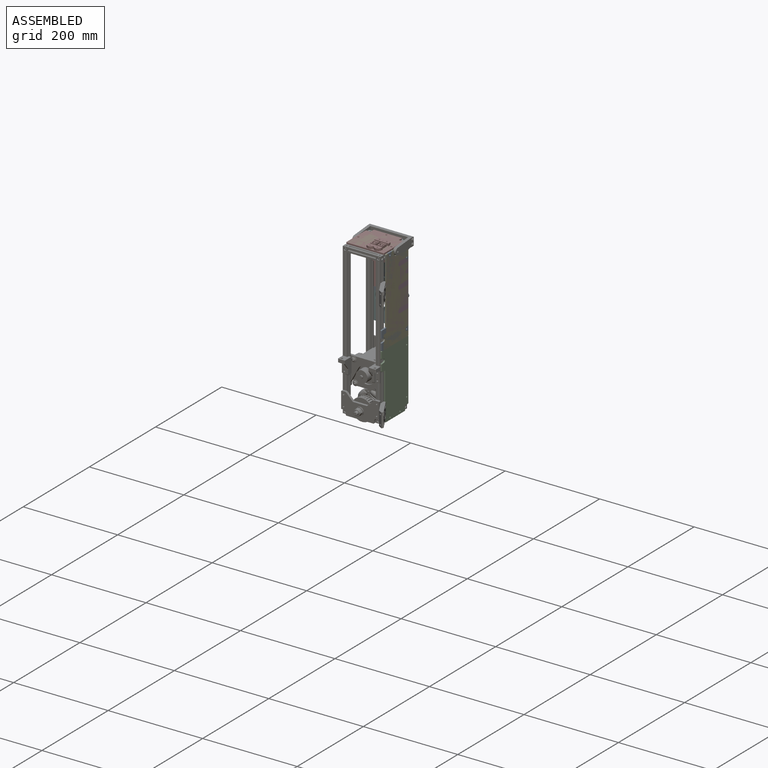
[diagram: assembled view]
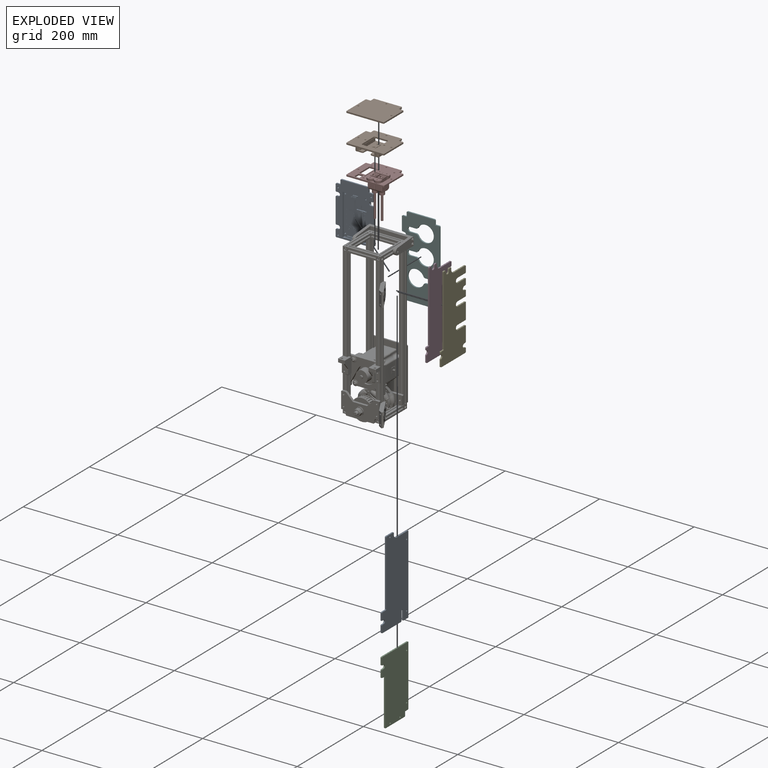
[diagram: exploded view]
GUIDED TOUR — FREECAD ASSEMBLY "colonne-moteur"

This assembly has 10 components, labeled P0..P9 below (a component is one placed body or linked part; the same part can appear more than once), held together by 0 modeled joints plus 39 derived contact edges. A joint is a constraint between two components; its type names the relative motion it leaves free:
  CONTACT — a derived adjacency edge — the two components touch in the source model (clearance under 2% of the assembly's diagonal); it is measured from the geometry, not a modeled constraint.
Axis/direction vectors are unit vectors and 'through' points are millimeter coordinates, both in the assembly's world frame.

MATES
  1. CONTACT "contact_0_1": P0 <-> P1, contact direction (0.000, 0.000, 1.000) through (40.00, 7.00, 319.50) mm (derived from contact, not a modeled constraint)
  2. CONTACT "contact_0_2": P0 <-> P2, contact direction (0.000, 0.000, -1.000) through (40.00, -4.00, 140.00) mm (derived from contact, not a modeled constraint)
  3. CONTACT "contact_0_3": P0 <-> P3, contact direction (1.000, 0.000, 0.000) through (40.00, 74.00, 140.00) mm (derived from contact, not a modeled constraint)
  4. CONTACT "contact_0_4": P0 <-> P4, contact direction (1.000, 0.000, 0.000) through (40.00, 74.00, 140.00) mm (derived from contact, not a modeled constraint)
  5. CONTACT "contact_0_5": P0 <-> P5, contact direction (0.000, 1.000, 0.000) through (40.00, 74.50, 308.00) mm (derived from contact, not a modeled constraint)
  6. CONTACT "contact_0_6": P0 <-> P6, contact direction (0.000, 0.000, -1.000) through (43.00, 37.22, 307.73) mm (derived from contact, not a modeled constraint)
  7. CONTACT "contact_0_7": P0 <-> P7, contact direction (0.000, 0.000, 1.000) through (38.08, 32.38, 319.50) mm (derived from contact, not a modeled constraint)
  8. CONTACT "contact_0_8": P0 <-> P8, contact direction (-0.697, 0.699, -0.163) through (39.14, 76.50, 305.24) mm (derived from contact, not a modeled constraint)
  9. CONTACT "contact_0_9": P0 <-> P9, contact direction (0.000, 0.000, 1.000) through (40.00, 7.00, 319.50) mm (derived from contact, not a modeled constraint)
  10. CONTACT "contact_1_3": P1 <-> P3, contact direction (0.000, 0.000, -1.000) through (40.00, 7.00, 319.50) mm (derived from contact, not a modeled constraint)
  11. CONTACT "contact_1_4": P1 <-> P4, contact direction (0.000, 0.000, -1.000) through (40.00, 7.00, 319.50) mm (derived from contact, not a modeled constraint)
  12. CONTACT "contact_1_5": P1 <-> P5, contact direction (0.000, 1.000, 0.000) through (-29.00, 75.00, 320.00) mm (derived from contact, not a modeled constraint)
  13. CONTACT "contact_1_6": P1 <-> P6, contact direction (0.000, 0.000, -1.000) through (39.50, 5.00, 320.00) mm (derived from contact, not a modeled constraint)
  14. CONTACT "contact_1_7": P1 <-> P7, contact direction (0.000, 0.000, -1.000) through (-39.00, 5.00, 320.00) mm (derived from contact, not a modeled constraint)
  15. CONTACT "contact_1_8": P1 <-> P8, contact direction (-1.000, 0.000, 0.000) through (29.00, 75.00, 320.00) mm (derived from contact, not a modeled constraint)
  16. CONTACT "contact_1_9": P1 <-> P9, contact direction (0.000, 0.000, -1.000) through (-39.00, 5.00, 320.00) mm (derived from contact, not a modeled constraint)
  17. CONTACT "contact_2_3": P2 <-> P3, contact direction (-1.000, 0.000, 0.000) through (43.00, 74.00, 140.00) mm (derived from contact, not a modeled constraint)
  18. CONTACT "contact_2_4": P2 <-> P4, contact direction (-1.000, 0.000, 0.000) through (43.00, 74.00, 140.00) mm (derived from contact, not a modeled constraint)
  19. CONTACT "contact_2_6": P2 <-> P6, contact direction (-1.000, 0.000, 0.000) through (38.25, 65.00, 10.00) mm (derived from contact, not a modeled constraint)
  20. CONTACT "contact_3_4": P3 <-> P4, contact direction (1.000, 0.000, 0.000) through (40.00, 0.00, 141.00) mm (derived from contact, not a modeled constraint)
  21. CONTACT "contact_3_5": P3 <-> P5, contact direction (-0.697, 0.699, -0.163) through (39.50, 74.78, 149.81) mm (derived from contact, not a modeled constraint)
  22. CONTACT "contact_3_6": P3 <-> P6, contact direction (0.000, 0.000, -1.000) through (43.00, 37.22, 307.73) mm (derived from contact, not a modeled constraint)
  23. CONTACT "contact_3_7": P3 <-> P7, contact direction (0.000, 0.000, 1.000) through (38.08, 32.38, 319.50) mm (derived from contact, not a modeled constraint)
  24. CONTACT "contact_3_8": P3 <-> P8, contact direction (-0.697, 0.699, -0.163) through (40.00, 75.00, 285.18) mm (derived from contact, not a modeled constraint)
  25. CONTACT "contact_3_9": P3 <-> P9, contact direction (0.000, 0.000, 1.000) through (40.00, 7.00, 319.50) mm (derived from contact, not a modeled constraint)
  26. CONTACT "contact_4_5": P4 <-> P5, contact direction (0.000, 1.000, 0.000) through (39.99, 75.00, 191.51) mm (derived from contact, not a modeled constraint)
  27. CONTACT "contact_4_6": P4 <-> P6, contact direction (0.000, 0.000, -1.000) through (43.00, 37.22, 307.73) mm (derived from contact, not a modeled constraint)
  28. CONTACT "contact_4_7": P4 <-> P7, contact direction (0.000, 0.000, 1.000) through (38.08, 32.38, 319.50) mm (derived from contact, not a modeled constraint)
  29. CONTACT "contact_4_8": P4 <-> P8, contact direction (0.000, 1.000, 0.000) through (39.50, 75.00, 293.75) mm (derived from contact, not a modeled constraint)
  30. CONTACT "contact_4_9": P4 <-> P9, contact direction (0.000, 0.000, 1.000) through (40.00, 7.00, 319.50) mm (derived from contact, not a modeled constraint)
  31. CONTACT "contact_5_6": P5 <-> P6, contact direction (0.163, -0.066, -0.984) through (40.00, 78.70, 308.50) mm (derived from contact, not a modeled constraint)
  32. CONTACT "contact_5_7": P5 <-> P7, contact direction (0.000, -1.000, 0.000) through (29.00, 75.00, 320.00) mm (derived from contact, not a modeled constraint)
  33. CONTACT "contact_5_8": P5 <-> P8, contact direction (0.000, 1.000, 0.000) through (29.00, 75.00, 320.00) mm (derived from contact, not a modeled constraint)
  34. CONTACT "contact_5_9": P5 <-> P9, contact direction (0.000, -1.000, 0.000) through (-29.00, 75.00, 321.50) mm (derived from contact, not a modeled constraint)
  35. CONTACT "contact_6_7": P6 <-> P7, contact direction (0.000, 0.000, 1.000) through (-37.38, 3.95, 318.95) mm (derived from contact, not a modeled constraint)
  36. CONTACT "contact_6_8": P6 <-> P8, contact direction (-0.163, 0.066, 0.984) through (38.93, 78.90, 306.90) mm (derived from contact, not a modeled constraint)
  37. CONTACT "contact_6_9": P6 <-> P9, contact direction (0.000, 0.000, 1.000) through (40.00, 5.50, 320.00) mm (derived from contact, not a modeled constraint)
  38. CONTACT "contact_7_8": P7 <-> P8, contact direction (-1.000, 0.000, 0.000) through (29.00, 75.00, 320.00) mm (derived from contact, not a modeled constraint)
  39. CONTACT "contact_7_9": P7 <-> P9, contact direction (-0.697, 0.699, -0.163) through (-39.00, 5.00, 320.00) mm (derived from contact, not a modeled constraint)

ASSEMBLY ORDER
  1. P6 — the base component [order heuristic]
  2. P5 — core [order heuristic]
  3. P2 [order verified]
  4. P8 — core [order heuristic]
  5. P0 [order verified]
  6. P4 [order verified]
  7. P3 [order verified]
  8. P7 — core [order heuristic]
  9. P9 — core [order heuristic]
  10. P1 [order verified]
(P3 verified with a relaxed clearance tolerance: the source model stores slight part interference there.)
Order-tag legend:
  [order verified] — this step's position reverses a verified removal order: the component was checked to insert without passing through the ones already placed.
  [order heuristic] — the first 5 components form the assembly's core: parts whose collision-free extraction could not be verified, listed in mate-graph order.

Of the 10 components, 10 carry a construction recipe — the FreeCAD feature program (sketches with constraints, then the solid features that consume them) that regenerates the part from scratch, quoted from this document or from the linked companion document it references; the rest are supplied as boundary geometry only. The tour below walks the components in assembly order: each is shown spotlighted twice — in the assembled view, then in the exploded view, where a leader line traces a displaced component back to its assembled socket (components that stay in place when exploded have no leader line; saturated green if recipe-attached, orange if geometry-only; every other component desaturated gray) — followed by its recipe or geometry summary and the mates that hold it.
NOTE — this tour is split across 2 documents so each fits a 32k-token context. This is document 1: the component sections continue in the remaining 1 document, each repeating the header above.
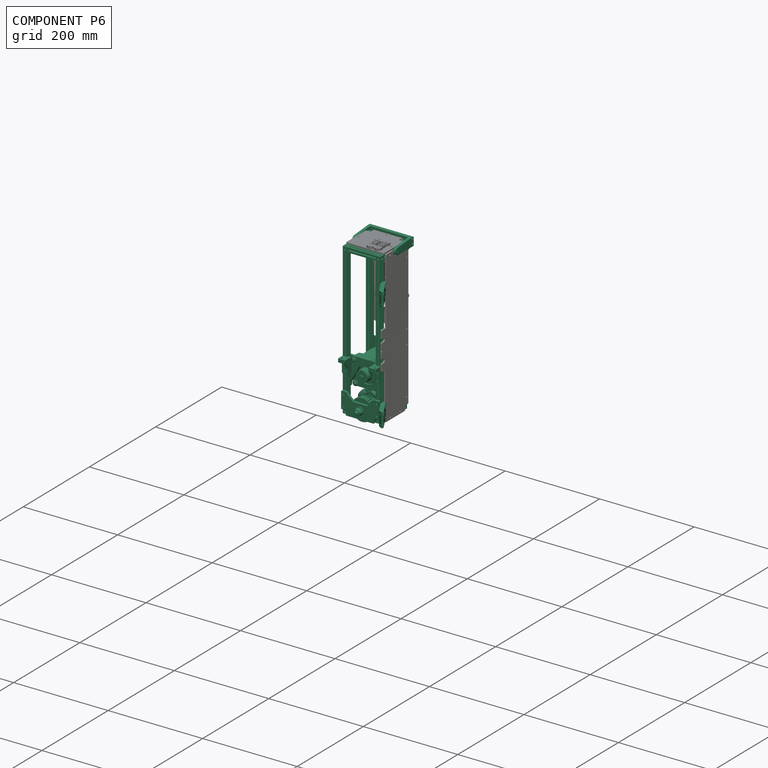
[diagram: component P6 — assembled]
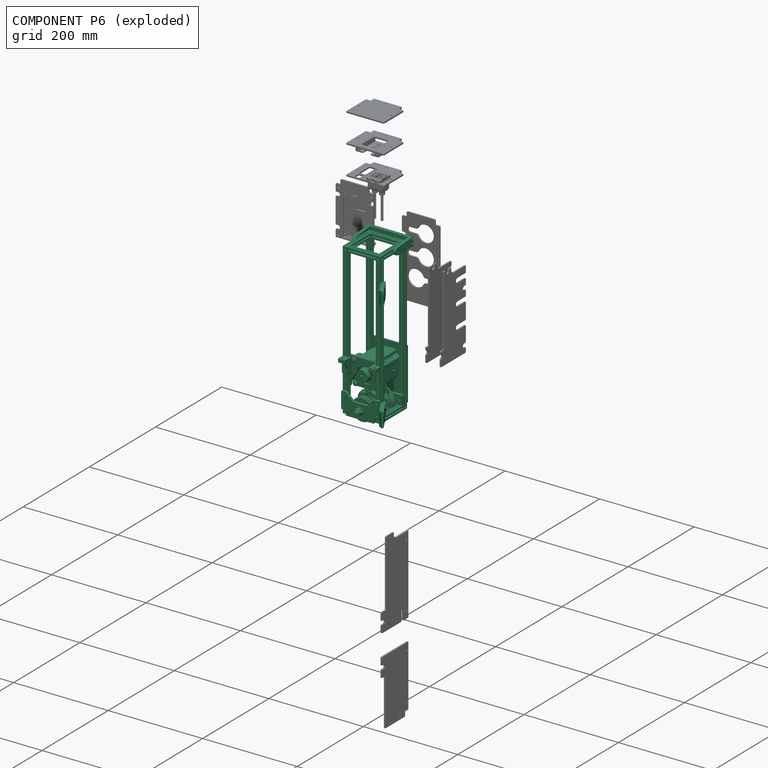
[diagram: component P6 — exploded]
COMPONENT P6 — recipe-attached ("ColonneMoteur", modeled in this document).
Held by: resting contact with P0 (derived edge); resting contact with P1 (derived edge); resting contact with P2 (derived edge); resting contact with P3 (derived edge); resting contact with P4 (derived edge); resting contact with P5 (derived edge); resting contact with P7 (derived edge); resting contact with P8 (derived edge); resting contact with P9 (derived edge).
Construction recipe (the document's own serialized feature program — sketch geometry with constraints, then the solid features built on it; lengths are millimeters unless a unit is written):

FEATURE [Part::SubShapeBinder] Import  label="Import(Chamfer001)"
  BindCopyOnChange = 0
  BindMode = 0
  ClaimChildren = false
  Context = -> <external ../robots_2023.FCStd>#Part001 [Link001.Group001.Link003.Body088.Import.]
  EdgeTolerance = 1e-06
  FillStyle = 0
  Fuse = false
  InvalidShape = false
  MakeFace = false
  MergeEdges = true
  OffsetFill = false
  OffsetIntersection = false
  OffsetJoinType = 0
  OffsetOpenResult = false
  Outline = false
  PartialLoad = false
  Relative = true
  SplitEdges = false
  Support = -> [Part[Body014.Chamfer001.]]
  TightBound = false
  TreeRank = 430
  ValidateShape = true
  _Version = 8
FEATURE [Sketcher::SketchObject] Sketch191
  ArcFitTolerance = 1e-06
  AttachmentSupport = -> [Import]
  ExternalBSplineMaxDegree = 5
  ExternalBSplineTolerance = 0.0001
  FullyConstrained = true
  InternalTolerance = 1e-06
  InvalidShape = false
  MakeInternals = true
  MapMode = 5
  Placement = pos=(0,65,1.44e-14) rot=(0,0.707107,0.707107;3.14159rad)
  Support = -> [Import]
  TreeRank = 431
  ValidateShape = true
  sketch-geometry (6):
    g0: LineSegment StartX=30 StartY=10 StartZ=0 EndX=15 EndY=10 EndZ=0
    g1: LineSegment StartX=15 StartY=10 StartZ=0 EndX=15 EndY=40 EndZ=0
    g2: LineSegment StartX=15 StartY=40 StartZ=0 EndX=30 EndY=40 EndZ=0
    g3: LineSegment StartX=30 StartY=40 StartZ=0 EndX=30 EndY=10 EndZ=0
    g4: Circle CenterX=22.5 CenterY=14 CenterZ=0 NormalX=0 NormalY=0 NormalZ=1 AngleXU=0 Radius=2.1
    g5: LineSegment [constr] StartX=22.5 StartY=10 StartZ=0 EndX=22.5 EndY=40 EndZ=0
  constraints (18):
    c: Coincident(g0,g1)
    c: Coincident(g1,g2)
    c: Coincident(g2,g3)
    c: Coincident(g3,g0)
    c: Horizontal(g0)
    c: Horizontal(g2)
    c: Vertical(g1)
    c: Vertical(g3)
    c: DistanceX(g2,g2) = 15
    c: DistanceY(g1,g1) = 30
    c: DistanceX(g-1,g0) = 30
    c: DistanceY(g-1,g0) = 10
    c: PointOnObject(g5,g0)
    c: Vertical(g5)
    c: Symmetric(g1,g2,g5)
    c: PointOnObject(g4,g5)
    c: Diameter(g4) = 4.2
    c: DistanceY(g5,g4) = 4
FEATURE [PartDesign::Pad] Pad101
  AddSubType = 0
  AlongSketchNormal = false
  AutoTaperInnerAngle = true
  CheckUpToFaceLimits = true
  ClaimChildren = false
  Direction = (0,1,2e-16)
  Fit = 0
  FitJoin = 0
  InnerFit = 0
  InnerFitJoin = 0
  InvalidShape = false
  Length = 10
  Length2 = 100
  Linearize = true
  NewSolid = false
  Profile = -> Sketch191
  Refine = true
  Suppress = false
  TaperInnerAngle = 0
  TaperInnerAngleRev = 0
  TreeRank = 432
  Type = 0
  ValidateShape = true
  _ProfileBasedVersion = 1
FEATURE [Sketcher::SketchObject] Sketch192
  ArcFitTolerance = 1e-06
  AttachmentSupport = -> [Pad101]
  ExternalBSplineMaxDegree = 5
  ExternalBSplineTolerance = 0.0001
  ExternalGeometry = -> [Pad101]
  FullyConstrained = true
  InternalTolerance = 1e-06
  InvalidShape = false
  MakeInternals = true
  MapMode = 5
  Placement = pos=(0,75,3.62e-14) rot=(0,0.707107,0.707107;3.14159rad)
  Support = -> [Pad101]
  TreeRank = 433
  ValidateShape = true
  sketch-geometry (4):
    g0: LineSegment StartX=15 StartY=40 StartZ=0 EndX=30 EndY=40 EndZ=0
    g1: LineSegment StartX=30 StartY=40 StartZ=0 EndX=30 EndY=18 EndZ=0
    g2: LineSegment StartX=30 StartY=18 StartZ=0 EndX=15 EndY=18 EndZ=0
    g3: LineSegment StartX=15 StartY=18 StartZ=0 EndX=15 EndY=40 EndZ=0
  constraints (10):
    c: Coincident(g0,g1)
    c: Coincident(g1,g2)
    c: Coincident(g2,g3)
    c: Coincident(g3,g0)
    c: Horizontal(g2)
    c: Vertical(g1)
    c: Vertical(g3)
    c: Coincident(g0,g-3)
    c: Coincident(g0,g-3)
    c: DistanceY(g-4,g2) = 8
FEATURE [PartDesign::Pocket] Pocket033
  AddSubType = 1
  AutoTaperInnerAngle = true
  BaseFeature = -> Pad101
  CheckUpToFaceLimits = true
  ClaimChildren = false
  Direction = (1,1,1)
  Fit = 0
  FitJoin = 0
  InnerFit = 0
  InnerFitJoin = 0
  InvalidShape = false
  Length = 8
  Length2 = 100
  Linearize = true
  NewSolid = false
  Profile = -> Sketch192
  Refine = true
  Suppress = false
  TaperInnerAngle = 0
  TaperInnerAngleRev = 0
  TreeRank = 434
  Type = 0
  ValidateShape = true
  _ProfileBasedVersion = 1
  _Version = 1
FEATURE [Sketcher::SketchObject] Sketch193
  ArcFitTolerance = 1e-06
  AttachmentSupport = -> [Pocket033]
  ExternalBSplineMaxDegree = 5
  ExternalBSplineTolerance = 0.0001
  ExternalGeometry = -> [Pocket033]
  FullyConstrained = true
  InternalTolerance = 1e-06
  InvalidShape = false
  MakeInternals = true
  MapMode = 5
  Placement = pos=(0,67,0) rot=(0,0.707107,0.707107;3.14159rad)
  Support = -> [Pocket033]
  TreeRank = 435
  ValidateShape = true
  sketch-geometry (4):
    g0: LineSegment StartX=15 StartY=18 StartZ=0 EndX=30 EndY=18 EndZ=0
    g1: LineSegment StartX=30 StartY=18 StartZ=0 EndX=30 EndY=26 EndZ=0
    g2: LineSegment StartX=30 StartY=26 StartZ=0 EndX=15 EndY=26 EndZ=0
    g3: LineSegment StartX=15 StartY=26 StartZ=0 EndX=15 EndY=18 EndZ=0
  constraints (10):
    c: Coincident(g0,g1)
    c: Coincident(g1,g2)
    c: Coincident(g2,g3)
    c: Coincident(g3,g0)
    c: Horizontal(g2)
    c: Vertical(g1)
    c: Vertical(g3)
    c: Coincident(g0,g-3)
    c: Coincident(g0,g-3)
    c: DistanceY(g3,g3) = 8
FEATURE [PartDesign::Pad] Pad102
  AddSubType = 0
  AlongSketchNormal = false
  AutoTaperInnerAngle = true
  BaseFeature = -> Pocket033
  CheckUpToFaceLimits = true
  ClaimChildren = false
  Direction = (0,1,-2e-16)
  Fit = 0
  FitJoin = 0
  InnerFit = 0
  InnerFitJoin = 0
  InvalidShape = false
  Length = 1.5
  Length2 = 100
  Linearize = true
  NewSolid = false
  Profile = -> Sketch193
  Refine = true
  Suppress = false
  TaperInnerAngle = 0
  TaperInnerAngleRev = 0
  TreeRank = 436
  Type = 0
  ValidateShape = true
  _ProfileBasedVersion = 1
FEATURE [Sketcher::SketchObject] Sketch194
  ArcFitTolerance = 1e-06
  AttachmentSupport = -> [Pad102]
  ExternalBSplineMaxDegree = 5
  ExternalBSplineTolerance = 0.0001
  ExternalGeometry = -> [Pad102]
  FullyConstrained = true
  InternalTolerance = 1e-06
  InvalidShape = false
  MakeInternals = true
  MapMode = 5
  Placement = pos=(0,-8e-15,18) rot=(0,0,1;0rad)
  Support = -> [Pad102]
  TreeRank = 437
  ValidateShape = true
  sketch-geometry (4):
    g0: LineSegment [constr] StartX=0 StartY=75 StartZ=0 EndX=-22.5 EndY=75 EndZ=0
    g1: LineSegment [constr] StartX=-22.5 StartY=75 StartZ=0 EndX=-1.1511e-12 EndY=-45 EndZ=0
    g2: LineSegment StartX=-30 StartY=68.5 StartZ=0 EndX=-15 EndY=71.3125 EndZ=0
    g3: LineSegment StartX=-15 StartY=71.3125 StartZ=0 EndX=-15 EndY=68.5 EndZ=0
  constraints (11):
    c: PointOnObject(g0,g-2)
    c: Horizontal(g0)
    c: Coincident(g1,g0)
    c: PointOnObject(g1,g-2)
    c: DistanceY(g1,g0) = 120
    c: Symmetric(g-3,g-3,g0)
    c: Coincident(g2,g-4)
    c: Coincident(g3,g2)
    c: Coincident(g3,g-4)
    c: Vertical(g3)
    c: Perpendicular(g1,g2)
FEATURE [PartDesign::Pad] Pad103
  AddSubType = 0
  AlongSketchNormal = false
  AutoTaperInnerAngle = true
  BaseFeature = -> Pad102
  CheckUpToFaceLimits = true
  ClaimChildren = false
  Direction = (0,-4e-16,1)
  Fit = 0
  FitJoin = 0
  InnerFit = 0
  InnerFitJoin = 0
  InvalidShape = false
  Length = 10
  Length2 = 100
  Linearize = true
  NewSolid = false
  Profile = -> Sketch194
  Refine = true
  Suppress = false
  TaperInnerAngle = 0
  TaperInnerAngleRev = 0
  TreeRank = 438
  Type = 3
  UpToFace = -> Pad102 [Face9]
  ValidateShape = true
  _ProfileBasedVersion = 1
FEATURE [Sketcher::SketchObject] Sketch195
  ArcFitTolerance = 1e-06
  AttachmentSupport = -> [Pad103]
  ExternalBSplineMaxDegree = 5
  ExternalBSplineTolerance = 0.0001
  ExternalGeometry = -> [Pad103]
  FullyConstrained = true
  InternalTolerance = 1e-06
  InvalidShape = false
  MakeInternals = true
  MapMode = 5
  Placement = pos=(-13.4264,71.6075,3.18e-14) rot=(-0.065577,0.705585,0.705585;3.27256rad)
  Support = -> [Pad103]
  TreeRank = 439
  ValidateShape = true
  sketch-geometry (2):
    g0: LineSegment [constr] StartX=1.60101 StartY=26 StartZ=0 EndX=16.8624 EndY=18 EndZ=0
    g1: Circle CenterX=9.2317 CenterY=22 CenterZ=0 NormalX=0 NormalY=0 NormalZ=1 AngleXU=0 Radius=1.2
  constraints (4):
    c: Coincident(g0,g-3)
    c: Coincident(g0,g-4)
    c: Diameter(g1) = 2.4
    c: Symmetric(g-3,g-4,g1)
FEATURE [PartDesign::Pocket] Pocket034
  AddSubType = 1
  AutoTaperInnerAngle = true
  BaseFeature = -> Pad103
  CheckUpToFaceLimits = true
  ClaimChildren = false
  Direction = (1,1,1)
  Fit = 0
  FitJoin = 0
  InnerFit = 0
  InnerFitJoin = 0
  InvalidShape = false
  Length = 5
  Length2 = 100
  Linearize = true
  NewSolid = false
  Profile = -> Sketch195
  Refine = true
  Suppress = false
  TaperInnerAngle = 0
  TaperInnerAngleRev = 0
  TreeRank = 440
  Type = 1
  ValidateShape = true
  _ProfileBasedVersion = 1
  _Version = 1
FEATURE [Sketcher::SketchObject] Sketch196
  ArcFitTolerance = 1e-06
  AttachmentOffset = pos=(0,0,-3) rot=(0,0,1;0rad)
  AttachmentSupport = -> [Pocket034]
  ExternalBSplineMaxDegree = 5
  ExternalBSplineTolerance = 0.0001
  ExternalGeometry = -> [Pocket034]
  FullyConstrained = true
  InternalTolerance = 1e-06
  InvalidShape = false
  MakeInternals = true
  MapMode = 5
  Placement = pos=(-12.8735,68.6589,3e-14) rot=(-0.065577,0.705585,0.705585;3.27256rad)
  Support = -> [Pocket034]
  TreeRank = 441
  ValidateShape = true
  sketch-geometry (7):
    g0: LineSegment StartX=6.63363 StartY=22 StartZ=0 EndX=7.93267 EndY=19.75 EndZ=0
    g1: LineSegment StartX=7.93267 StartY=19.75 StartZ=0 EndX=10.5307 EndY=19.75 EndZ=0
    g2: LineSegment StartX=10.5307 StartY=19.75 StartZ=0 EndX=11.8298 EndY=22 EndZ=0
    g3: LineSegment StartX=11.8298 StartY=22 StartZ=0 EndX=10.5307 EndY=24.25 EndZ=0
    g4: LineSegment StartX=10.5307 StartY=24.25 StartZ=0 EndX=7.93267 EndY=24.25 EndZ=0
    g5: LineSegment StartX=7.93267 StartY=24.25 StartZ=0 EndX=6.63363 EndY=22 EndZ=0
    g6: Circle [constr] CenterX=9.2317 CenterY=22 CenterZ=0 NormalX=0 NormalY=0 NormalZ=1 AngleXU=0 Radius=2.59808
  constraints (16):
    c: Coincident(g0,g1)
    c: Coincident(g1,g2)
    c: Coincident(g2,g3)
    c: Coincident(g3,g4)
    c: Coincident(g4,g5)
    c: Coincident(g5,g0)
    c: Equal(g0, g1-g5) x5
    c: PointOnObject(g0,g6)
    c: PointOnObject(g1,g6)
    c: PointOnObject(g2,g6)
    c: PointOnObject(g3,g6)
    c: PointOnObject(g4,g6)
    c: PointOnObject(g5,g6)
    c: Coincident(g6,g-3)
    c: Horizontal(g4)
    c: DistanceY(g1,g3) = 4.5
FEATURE [PartDesign::Pocket] Pocket035
  AddSubType = 1
  AutoTaperInnerAngle = true
  BaseFeature = -> Pocket034
  CheckUpToFaceLimits = true
  ClaimChildren = false
  Direction = (1,1,1)
  Fit = 0
  FitJoin = 0
  InnerFit = 0
  InnerFitJoin = 0
  InvalidShape = false
  Length = 5
  Length2 = 100
  Linearize = true
  NewSolid = false
  Profile = -> Sketch196
  Refine = true
  Suppress = false
  TaperInnerAngle = 0
  TaperInnerAngleRev = 0
  TreeRank = 442
  Type = 0
  ValidateShape = true
  _ProfileBasedVersion = 1
  _Version = 1
FEATURE [PartDesign::Chamfer] Chamfer066
  AddSubType = 0
  Angle = 45
  Base = -> Pocket035 [Edge2,Edge1,Edge18,Edge6]
  BaseFeature = -> Pocket035
  ChamferType = 0
  FlipDirection = false
  InvalidShape = false
  NewSolid = false
  Refine = true
  Size = 2
  Size2 = 1
  SupportTransform = false
  Suppress = false
  TreeRank = 443
  UseAllEdges = false
  ValidateShape = true
FEATURE [PartDesign::Chamfer] Chamfer067
  AddSubType = 0
  Angle = 45
  Base = -> Chamfer066 [Edge26,Edge58]
  BaseFeature = -> Chamfer066
  ChamferType = 0
  FlipDirection = false
  InvalidShape = false
  NewSolid = false
  Refine = true
  Size = 0.5
  Size2 = 1
  SupportTransform = false
  Suppress = false
  TreeRank = 444
  UseAllEdges = false
  ValidateShape = true
FEATURE [PartDesign::Chamfer] Chamfer068
  AddSubType = 0
  Angle = 45
  Base = -> Chamfer067 [Edge27,Edge20,Edge26,Edge21]
  BaseFeature = -> Chamfer067
  ChamferType = 0
  FlipDirection = false
  InvalidShape = false
  NewSolid = false
  Refine = true
  Size = 1
  Size2 = 1
  SupportTransform = false
  Suppress = false
  TreeRank = 445
  UseAllEdges = false
  ValidateShape = true
FEATURE [PartDesign::Chamfer] Chamfer069
  AddSubType = 0
  Angle = 45
  Base = -> Chamfer068 [Face12]
  BaseFeature = -> Chamfer068
  ChamferType = 0
  FlipDirection = false
  InvalidShape = false
  NewSolid = false
  Refine = true
  Size = 0.4
  Size2 = 1
  SupportTransform = false
  Suppress = false
  TreeRank = 446
  UseAllEdges = false
  ValidateShape = true
FEATURE [PartDesign::Body] Body088  label="SupportPololuPOL4079"
  AutoGroupSolids = false
  ClaimAllChildren = false
  ExportMode = 0
  Group = -> [Import,Sketch191,Pad101,Sketch192,Pocket033,Sketch193,Pad102,Sketch194,Pad103,Sketch195,Pocket034,Sketch196,Pocket035,Chamfer066,Chamfer067,Chamfer068,Chamfer069]
  InvalidShape = false
  Origin = -> Origin176
  SingleSolid = true
  Tip = -> Chamfer069
  TreeRank = 429
  ValidateShape = true
  _ExportChildren = -> [Import,Pad101,Pocket033,Pad102,Pad103,Pocket034,Pocket035,Chamfer066,Chamfer067,Chamfer068,Chamfer069]
  _GroupVersion = 1
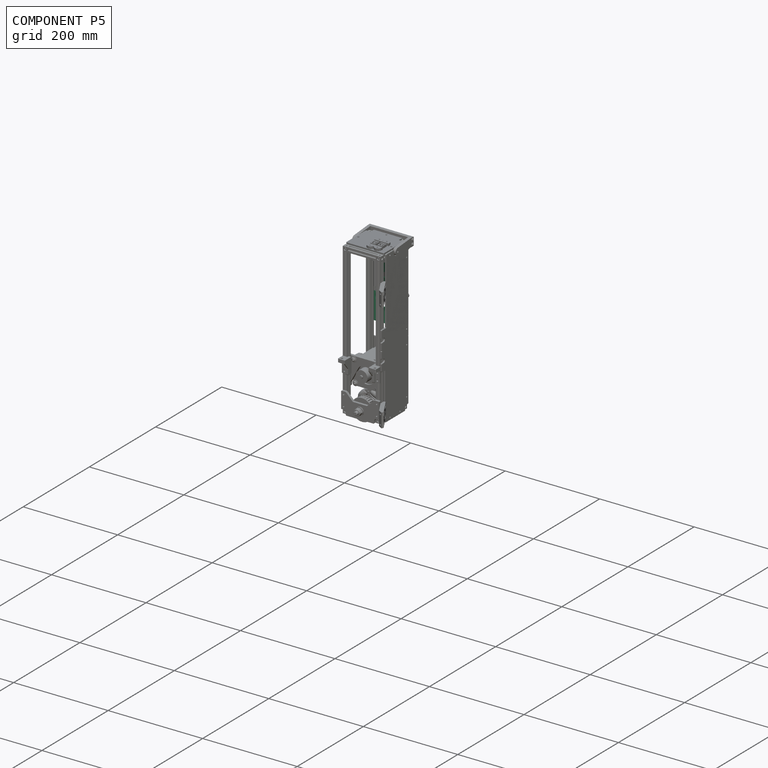
[diagram: component P5 — assembled]
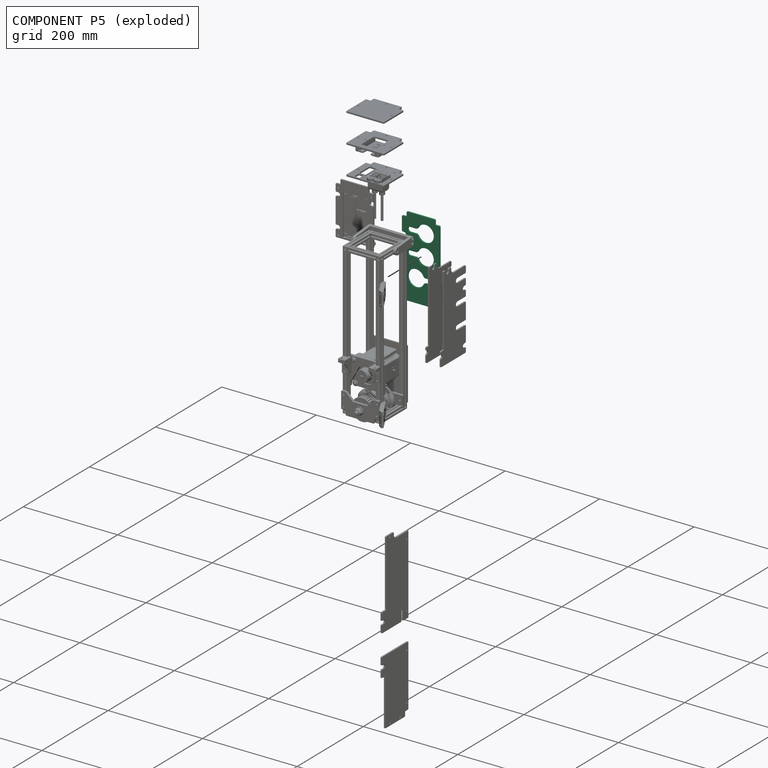
[diagram: component P5 — exploded]
COMPONENT P5 — recipe-attached ("CarterSupCoteServo", modeled in this document).
Held by: resting contact with P0 (derived edge); resting contact with P1 (derived edge); resting contact with P3 (derived edge); resting contact with P4 (derived edge); resting contact with P6 (derived edge); resting contact with P7 (derived edge); resting contact with P8 (derived edge); resting contact with P9 (derived edge).
Construction recipe (the document's own serialized feature program — sketch geometry with constraints, then the solid features built on it; lengths are millimeters unless a unit is written):

FEATURE [Sketcher::SketchObject] Sketch226
  ArcFitTolerance = 1e-06
  AttachmentSupport = -> [XZ_Plane120]
  ExternalBSplineMaxDegree = 5
  ExternalBSplineTolerance = 0.0001
  FixShape = 1
  FullyConstrained = true
  InternalTolerance = 1e-06
  InvalidShape = false
  MakeInternals = false
  MapMode = 5
  Placement = pos=(0,0,0) rot=(1,0,0;1.5708rad)
  Support = -> [XZ_Plane120]
  TreeRank = 741
  ValidateShape = false
  sketch-geometry (17):
    g0: LineSegment StartX=40 StartY=150 StartZ=0 EndX=-40 EndY=150 EndZ=0
    g1: LineSegment StartX=-40 StartY=150 StartZ=0 EndX=-40 EndY=310 EndZ=0
    g2: LineSegment StartX=-40 StartY=310 StartZ=0 EndX=-30 EndY=310 EndZ=0
    g3: LineSegment StartX=-30 StartY=310 StartZ=0 EndX=-30 EndY=320 EndZ=0
    g4: LineSegment StartX=-30 StartY=320 StartZ=0 EndX=30 EndY=320 EndZ=0
    g5: LineSegment StartX=30 StartY=320 StartZ=0 EndX=30 EndY=310 EndZ=0
    g6: LineSegment StartX=30 StartY=310 StartZ=0 EndX=40 EndY=310 EndZ=0
    g7: LineSegment StartX=40 StartY=310 StartZ=0 EndX=40 EndY=150 EndZ=0
    g8: Circle CenterX=10 CenterY=287.5 CenterZ=0 NormalX=0 NormalY=0 NormalZ=1 AngleXU=0 Radius=17.5
    g9: Circle CenterX=10 CenterY=242.5 CenterZ=0 NormalX=0 NormalY=0 NormalZ=1 AngleXU=0 Radius=17.5
    g10: Circle CenterX=-10 CenterY=197.5 CenterZ=0 NormalX=0 NormalY=0 NormalZ=1 AngleXU=0 Radius=17.5
    g11: LineSegment [constr] StartX=40 StartY=287.5 StartZ=0 EndX=-40 EndY=287.5 EndZ=0
    g12: LineSegment [constr] StartX=40 StartY=242.5 StartZ=0 EndX=-40 EndY=242.5 EndZ=0
    g13: LineSegment [constr] StartX=40 StartY=197.5 StartZ=0 EndX=-40 EndY=197.5 EndZ=0
    g14: LineSegment [constr] StartX=10 StartY=287.5 StartZ=0 EndX=10 EndY=242.5 EndZ=0
    g15: LineSegment [constr] StartX=10 StartY=242.5 StartZ=0 EndX=10 EndY=197.5 EndZ=0
    g16: LineSegment [constr] StartX=30 StartY=310 StartZ=0 EndX=-30 EndY=310 EndZ=0
  constraints (50):
    c: Coincident(g0,g1)
    c: Vertical(g1)
    c: Coincident(g1,g2)
    c: Horizontal(g2)
    c: Coincident(g2,g3)
    c: Vertical(g3)
    c: Coincident(g3,g4)
    c: Horizontal(g4)
    c: Coincident(g4,g5)
    c: Vertical(g5)
    c: Coincident(g5,g6)
    c: Horizontal(g6)
    c: Coincident(g6,g7)
    c: Coincident(g7,g0)
    c: Vertical(g7)
    c: Symmetric(g0,g0,g-2)
    c: Symmetric(g2,g5,g-2)
    c: Equal(g5,g6)
    c: DistanceY(g3,g3) = 10
    c: DistanceX(g1,g6) = 80
    c: DistanceY(g1) = 310
    c: DistanceY(g1,g1) = 160
    c: Equal(g10,g9)
    c: Equal(g9,g8)
    c: PointOnObject(g11,g7)
    c: PointOnObject(g11,g1)
    c: Horizontal(g11)
    c: PointOnObject(g12,g7)
    c: PointOnObject(g12,g1)
    c: Horizontal(g12)
    c: PointOnObject(g13,g7)
    c: PointOnObject(g13,g1)
    c: Horizontal(g13)
    c: Coincident(g14,g8)
    c: Coincident(g14,g9)
    c: Vertical(g14)
    c: Coincident(g15,g9)
    c: PointOnObject(g15,g13)
    c: Vertical(g15)
    c: Equal(g15,g14)
    c: PointOnObject(g8,g11)
    c: PointOnObject(g9,g12)
    c: PointOnObject(g10,g13)
    c: Coincident(g16,g5)
    c: Coincident(g16,g2)
    c: DistanceY(g14,g14) = 45
    c: DistanceY(g8,g5) = 22.5
    c: DistanceX(g8,g11) = 30
    c: DistanceX(g13,g10) = 30
    c: Diameter(g8) = 35
FEATURE [PartDesign::Pad] Pad114
  AddSubType = 0
  AlongSketchNormal = false
  AutoTaperInnerAngle = true
  CheckUpToFaceLimits = true
  ClaimChildren = false
  Direction = (0,-1,2e-16)
  Fit = 0
  FitJoin = 0
  FixShape = 1
  InnerFit = 0
  InnerFitJoin = 0
  InvalidShape = false
  Length = 3
  Length2 = 10
  Linearize = true
  NewSolid = false
  Profile = -> Sketch226
  ReferenceAxis = -> Sketch226 [N_Axis]
  Refine = true
  Reversed = true
  Suppress = false
  TaperInnerAngle = 0
  TaperInnerAngleRev = 0
  TreeRank = 742
  Type = 0
  ValidateShape = true
  _ProfileBasedVersion = 1
FEATURE [Sketcher::SketchObject] Sketch227
  ArcFitTolerance = 1e-06
  AttachmentSupport = -> [XZ_Plane120]
  ExternalBSplineMaxDegree = 5
  ExternalBSplineTolerance = 0.0001
  ExternalGeometry = -> [Pad114]
  FixShape = 1
  FullyConstrained = true
  InternalTolerance = 1e-06
  InvalidShape = false
  MakeInternals = false
  MapMode = 5
  Placement = pos=(0,0,0) rot=(1,0,0;1.5708rad)
  Support = -> [XZ_Plane120]
  TreeRank = 743
  ValidateShape = false
  sketch-geometry (8):
    g0: ArcOfCircle CenterX=-40 CenterY=275 CenterZ=0 NormalX=0 NormalY=0 NormalZ=1 AngleXU=0 Radius=5 StartAngle=1.36944 EndAngle=4.91375
    g1: ArcOfCircle CenterX=-35 CenterY=275 CenterZ=0 NormalX=0 NormalY=0 NormalZ=1 AngleXU=0 Radius=4 StartAngle=4.91375 EndAngle=7.65262
    g2: LineSegment StartX=-39 StartY=270.101 StartZ=0 EndX=-34.2 EndY=271.081 EndZ=0
    g3: LineSegment StartX=-34.2 StartY=278.919 StartZ=0 EndX=-39 EndY=279.899 EndZ=0
    g4: ArcOfCircle CenterX=40 CenterY=185 CenterZ=0 NormalX=0 NormalY=0 NormalZ=1 AngleXU=0 Radius=5 StartAngle=4.51103 EndAngle=8.05534
    g5: ArcOfCircle CenterX=35 CenterY=185 CenterZ=0 NormalX=0 NormalY=0 NormalZ=1 AngleXU=0 Radius=4 StartAngle=1.77215 EndAngle=4.51103
    g6: LineSegment StartX=39 StartY=189.899 StartZ=0 EndX=34.2 EndY=188.919 EndZ=0
    g7: LineSegment StartX=34.2 StartY=181.081 StartZ=0 EndX=39 EndY=180.101 EndZ=0
  constraints (20):
    c: Tangent(g0,g2) = -1.5708
    c: Tangent(g2,g1) = -1.5708
    c: Tangent(g1,g3) = -1.5708
    c: Tangent(g3,g0) = -1.5708
    c: PointOnObject(g0,g-4)
    c: Horizontal(g1,g0)
    c: DistanceX(g0,g1) = 5
    c: Radius(g1) = 4
    c: Radius(g0) = 5
    c: Tangent(g4,g6) = -1.5708
    c: Tangent(g6,g5) = -1.5708
    c: Tangent(g5,g7) = -1.5708
    c: Tangent(g7,g4) = -1.5708
    c: PointOnObject(g4,g-3)
    c: Horizontal(g5,g4)
    c: Equal(g5,g1)
    c: Equal(g4,g0)
    c: Equal(g6,g2)
    c: DistanceY(g-3,g4) = 35
    c: DistanceY(g0,g-4) = 35
FEATURE [PartDesign::Pocket] Pocket054
  AddSubType = 1
  AlongSketchNormal = false
  AutoTaperInnerAngle = true
  BaseFeature = -> Pad114
  CheckUpToFaceLimits = true
  ClaimChildren = false
  Direction = (0,1,-2e-16)
  Fit = 0
  FitJoin = 0
  FixShape = 1
  InnerFit = 0
  InnerFitJoin = 0
  InvalidShape = false
  Length = 5
  Length2 = 10
  Linearize = true
  NewSolid = false
  Profile = -> Sketch227
  ReferenceAxis = -> Sketch227 [N_Axis]
  Refine = true
  Suppress = false
  TaperInnerAngle = 0
  TaperInnerAngleRev = 0
  TreeRank = 744
  Type = 1
  ValidateShape = true
  _ProfileBasedVersion = 1
  _Version = 1
FEATURE [PartDesign::Fillet] Fillet072
  AddSubType = 0
  Base = -> Pocket054 [Edge7,Edge56,Edge9,Edge63]
  BaseFeature = -> Pocket054
  FixShape = 1
  InvalidShape = false
  NewSolid = false
  Radius = 2
  Refine = true
  SupportTransform = false
  Suppress = false
  TreeRank = 745
  UseAllEdges = false
  ValidateShape = true
FEATURE [PartDesign::Chamfer] Chamfer079
  AddSubType = 0
  Angle = 45
  Base = -> Fillet072 [Edge65,Edge64,Edge63,Edge59,Edge29,Edge3]
  BaseFeature = -> Fillet072
  ChamferType = 0
  FixShape = 1
  FlipDirection = false
  InvalidShape = false
  NewSolid = false
  Refine = true
  Size = 1
  Size2 = 1
  SupportTransform = false
  Suppress = false
  TreeRank = 746
  UseAllEdges = false
  ValidateShape = true
FEATURE [Sketcher::SketchObject] Sketch228
  ArcFitTolerance = 1e-06
  AttachmentSupport = -> [XZ_Plane120]
  ExternalBSplineMaxDegree = 5
  ExternalBSplineTolerance = 0.0001
  ExternalGeometry = -> [Chamfer079]
  FixShape = 1
  FullyConstrained = true
  InternalTolerance = 1e-06
  InvalidShape = false
  MakeInternals = false
  MapMode = 5
  Placement = pos=(0,0,0) rot=(1,0,0;1.5708rad)
  Support = -> [XZ_Plane120]
  TreeRank = 747
  ValidateShape = false
  sketch-geometry (14):
    g0: ArcOfCircle CenterX=10 CenterY=287.5 CenterZ=0 NormalX=0 NormalY=0 NormalZ=1 AngleXU=0 Radius=5 StartAngle=4.71239 EndAngle=7.85398
    g1: ArcOfCircle CenterX=-22.5 CenterY=287.5 CenterZ=0 NormalX=0 NormalY=0 NormalZ=1 AngleXU=0 Radius=5 StartAngle=1.5708 EndAngle=4.71239
    g2: LineSegment StartX=10 StartY=292.5 StartZ=0 EndX=-22.5 EndY=292.5 EndZ=0
    g3: LineSegment StartX=-22.5 StartY=282.5 StartZ=0 EndX=10 EndY=282.5 EndZ=0
    g4: ArcOfCircle CenterX=10 CenterY=242.5 CenterZ=0 NormalX=0 NormalY=0 NormalZ=1 AngleXU=0 Radius=5 StartAngle=4.71239 EndAngle=7.85398
    g5: ArcOfCircle CenterX=-22.5 CenterY=242.5 CenterZ=0 NormalX=0 NormalY=0 NormalZ=1 AngleXU=0 Radius=5 StartAngle=1.5708 EndAngle=4.71239
    g6: LineSegment StartX=10 StartY=247.5 StartZ=0 EndX=-22.5 EndY=247.5 EndZ=0
    g7: LineSegment StartX=-22.5 StartY=237.5 StartZ=0 EndX=10 EndY=237.5 EndZ=0
    g8: ArcOfCircle CenterX=-10 CenterY=197.5 CenterZ=0 NormalX=0 NormalY=0 NormalZ=1 AngleXU=0 Radius=5 StartAngle=1.5708 EndAngle=4.71239
    g9: ArcOfCircle CenterX=22.5 CenterY=197.5 CenterZ=0 NormalX=0 NormalY=0 NormalZ=1 AngleXU=0 Radius=5 StartAngle=4.71239 EndAngle=7.85398
    g10: LineSegment StartX=-10 StartY=192.5 StartZ=0 EndX=22.5 EndY=192.5 EndZ=0
    g11: LineSegment StartX=22.5 StartY=202.5 StartZ=0 EndX=-10 EndY=202.5 EndZ=0
    g12: GeomPoint [constr] X=-27.5 Y=287.5 Z=0
    g13: GeomPoint [constr] X=-27.5 Y=197.5 Z=0
  constraints (31):
    c: Tangent(g0,g2) = -1.5708
    c: Tangent(g2,g1) = -1.5708
    c: Tangent(g1,g3) = -1.5708
    c: Tangent(g3,g0) = -1.5708
    c: Equal(g0,g1)
    c: Coincident(g0,g-3)
    c: Horizontal(g2)
    c: Tangent(g4,g6) = -1.5708
    c: Tangent(g6,g5) = -1.5708
    c: Tangent(g5,g7) = -1.5708
    c: Tangent(g7,g4) = -1.5708
    c: Equal(g4,g5)
    c: Coincident(g4,g-4)
    c: Horizontal(g6)
    c: Tangent(g8,g10) = -1.5708
    c: Tangent(g10,g9) = -1.5708
    c: Tangent(g9,g11) = -1.5708
    c: Tangent(g11,g8) = -1.5708
    c: Equal(g8,g9)
    c: Coincident(g8,g-5)
    c: Horizontal(g10)
    c: Equal(g9,g1)
    c: Equal(g1,g5)
    c: Equal(g7,g11)
    c: Equal(g11,g3)
    c: PointOnObject(g12,g1)
    c: PointOnObject(g13,g-5)
    c: Horizontal(g13,g8)
    c: Horizontal(g12,g1)
    c: Vertical(g12,g13)
    c: Radius(g5) = 5
FEATURE [PartDesign::Pocket] Pocket055
  AddSubType = 1
  AlongSketchNormal = false
  AutoTaperInnerAngle = true
  BaseFeature = -> Chamfer079
  CheckUpToFaceLimits = true
  ClaimChildren = false
  Direction = (0,1,-2e-16)
  Fit = 0
  FitJoin = 0
  FixShape = 1
  InnerFit = 0
  InnerFitJoin = 0
  InvalidShape = false
  Length = 5
  Length2 = 10
  Linearize = true
  NewSolid = false
  Profile = -> Sketch228
  ReferenceAxis = -> Sketch228 [N_Axis]
  Refine = true
  Suppress = false
  TaperInnerAngle = 0
  TaperInnerAngleRev = 0
  TreeRank = 748
  Type = 0
  ValidateShape = true
  _ProfileBasedVersion = 1
  _Version = 1
FEATURE [PartDesign::Fillet] Fillet073
  AddSubType = 0
  Base = -> Pocket055 [Edge118,Edge115,Edge107,Edge110,Edge114,Edge111]
  BaseFeature = -> Pocket055
  FixShape = 1
  InvalidShape = false
  NewSolid = false
  Radius = 5
  Refine = true
  SupportTransform = false
  Suppress = false
  TreeRank = 749
  UseAllEdges = false
  ValidateShape = true
FEATURE [PartDesign::Body] Body098  label="CarterSupCoteServo"
  AutoGroupSolids = false
  ClaimAllChildren = false
  ExportMode = 0
  FixShape = 1
  Group = -> [Sketch226,Pad114,Sketch227,Pocket054,Fillet072,Chamfer079,Sketch228,Pocket055,Fillet073]
  InvalidShape = false
  Origin = -> Origin192
  Placement = pos=(0,75,0) rot=(0,0,1;0rad)
  SingleSolid = true
  Tip = -> Fillet073
  TreeRank = 740
  ValidateShape = false
  _ExportChildren = -> [Pad114,Pocket054,Fillet072,Chamfer079,Pocket055,Fillet073]
  _GroupVersion = 1
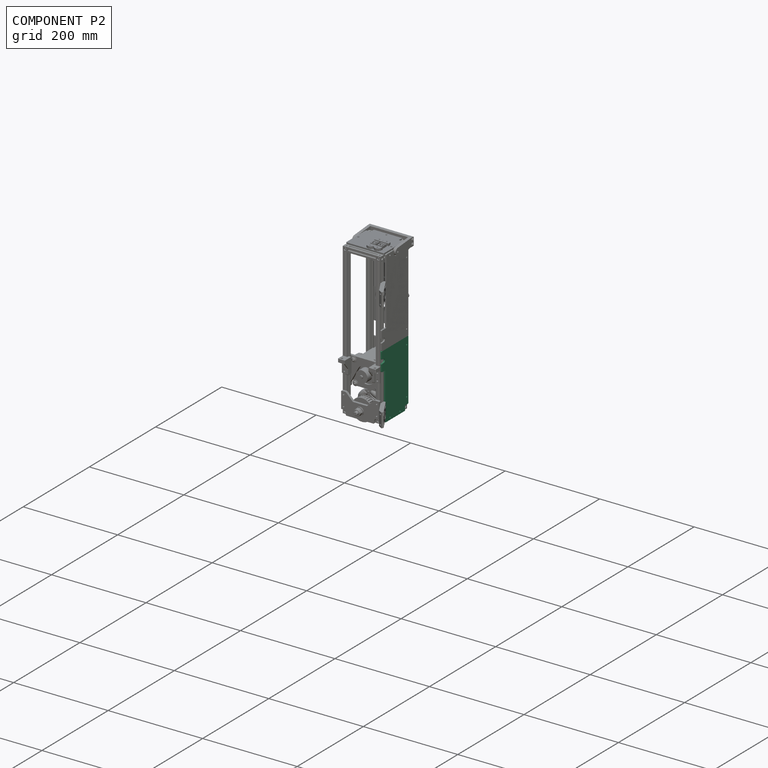
[diagram: component P2 — assembled]
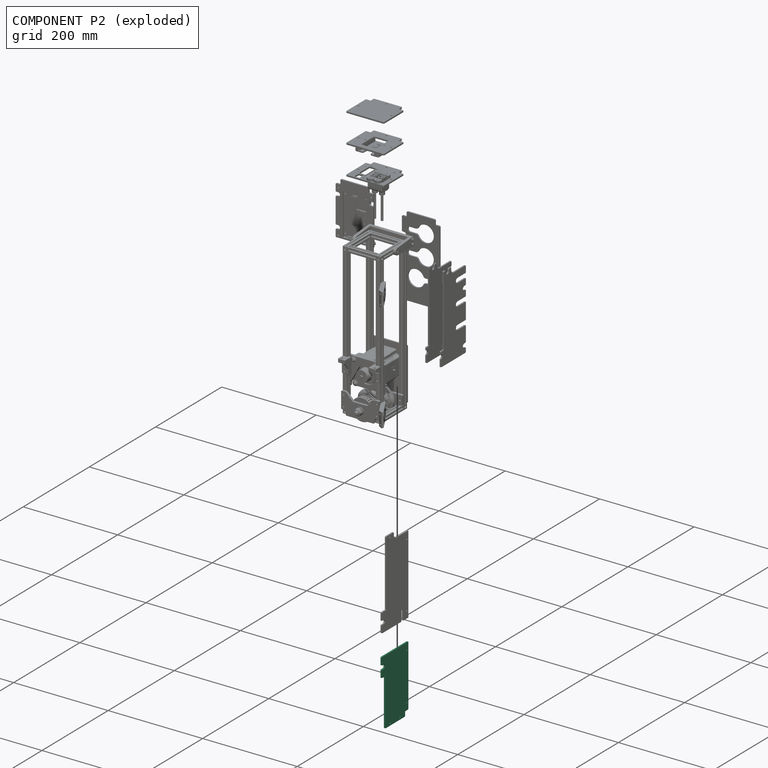
[diagram: component P2 — exploded]
COMPONENT P2 — recipe-attached ("CarterInf", modeled in this document).
Held by: resting contact with P0 (derived edge); resting contact with P3 (derived edge); resting contact with P4 (derived edge); resting contact with P6 (derived edge).
Construction recipe (the document's own serialized feature program — sketch geometry with constraints, then the solid features built on it; lengths are millimeters unless a unit is written):

FEATURE [Sketcher::SketchObject] Sketch153
  ArcFitTolerance = 0
  AttachmentOffset = pos=(0,0,40) rot=(0,0,1;0rad)
  AttachmentSupport = -> [YZ_Plane091]
  ExternalBSplineMaxDegree = 0
  ExternalBSplineTolerance = 0
  FullyConstrained = true
  InternalTolerance = 1e-06
  InvalidShape = false
  MakeInternals = false
  MapMode = 5
  Placement = pos=(40,-8.9e-15,8.9e-15) rot=(0.57735,0.57735,0.57735;2.0944rad)
  Support = -> [YZ_Plane091]
  TreeRank = 26
  ValidateShape = true
  sketch-geometry (16):
    g0: LineSegment StartX=-5 StartY=140 StartZ=0 EndX=75 EndY=140 EndZ=0
    g1: LineSegment StartX=75 StartY=140 StartZ=0 EndX=75 EndY=10 EndZ=0
    g2: LineSegment StartX=75 StartY=10 StartZ=0 EndX=65 EndY=10 EndZ=0
    g3: LineSegment StartX=65 StartY=10 StartZ=0 EndX=65 EndY=5.15e-14 EndZ=0
    g4: LineSegment StartX=65 StartY=5.19e-14 StartZ=0 EndX=5 EndY=0 EndZ=0
    g5: LineSegment StartX=5 StartY=0 StartZ=0 EndX=5 EndY=100 EndZ=0
    g6: LineSegment StartX=5 StartY=100 StartZ=0 EndX=-5 EndY=100 EndZ=0
    g7: LineSegment StartX=-5 StartY=100 StartZ=0 EndX=-5 EndY=116 EndZ=0
    g8: Circle CenterX=20 CenterY=5 CenterZ=0 NormalX=0 NormalY=0 NormalZ=1 AngleXU=0 Radius=1.6
    g9: Circle CenterX=50 CenterY=5 CenterZ=0 NormalX=0 NormalY=0 NormalZ=1 AngleXU=0 Radius=1.6
    g10: Circle CenterX=70 CenterY=25 CenterZ=0 NormalX=0 NormalY=0 NormalZ=1 AngleXU=0 Radius=1.6
    g11: Circle CenterX=70 CenterY=125 CenterZ=0 NormalX=0 NormalY=0 NormalZ=1 AngleXU=0 Radius=1.6
    g12: ArcOfCircle CenterX=-1.37292e-11 CenterY=120 CenterZ=0 NormalX=0 NormalY=0 NormalZ=1 AngleXU=0 Radius=4 StartAngle=4.71239 EndAngle=7.85398
    g13: LineSegment StartX=-5 StartY=116 StartZ=0 EndX=-4.11307e-11 EndY=116 EndZ=0
    g14: LineSegment StartX=-3.5766e-12 StartY=124 StartZ=0 EndX=-5 EndY=124 EndZ=0
    g15: LineSegment StartX=-5 StartY=124 StartZ=0 EndX=-5 EndY=140 EndZ=0
  constraints (47):
    c: Horizontal(g0)
    c: Coincident(g0,g1)
    c: Vertical(g1)
    c: Coincident(g1,g2)
    c: Coincident(g2,g3)
    c: PointOnObject(g3,g-1)
    c: Vertical(g3)
    c: Coincident(g3,g4)
    c: PointOnObject(g4,g-1)
    c: Coincident(g4,g5)
    c: Vertical(g5)
    c: Coincident(g5,g6)
    c: Horizontal(g6)
    c: Coincident(g6,g7)
    c: Coincident(g15,g0)
    c: Vertical(g7)
    c: DistanceY(g6) = 100
    c: DistanceY(g0) = 140
    c: DistanceX(g6,g6) = 10
    c: DistanceX(g5) = 5
    c: DistanceX(g0,g0) = 80
    c: Equal(g2,g3)
    c: Horizontal(g2)
    c: DistanceX(g2,g2) = 10
    c: Equal(g9,g8)
    c: Equal(g8,g10)
    c: Equal(g10,g11)
    c: Diameter(g11) = 3.2
    c: Vertical(g11,g10)
    c: Horizontal(g8,g9)
    c: DistanceX(g9,g3) = 15
    c: DistanceX(g4,g8) = 15
    c: DistanceY(g8) = 5
    c: DistanceX(g10,g1) = 5
    c: DistanceY(g1,g10) = 15
    c: DistanceY(g11,g0) = 15
    c: Tangent(g13,g12) = -1.5708
    c: Tangent(g12,g14) = -1.5708
    c: Horizontal(g14)
    c: Radius(g12) = 4
    c: Equal(g15,g7)
    c: Vertical(g15)
    c: Coincident(g14,g15)
    c: PointOnObject(g7,g15)
    c: DistanceX(g14,g14) = 5
    c: Coincident(g13,g7)
    c: Horizontal(g13)
FEATURE [PartDesign::Pad] Pad085
  AddSubType = 0
  AlongSketchNormal = false
  AutoTaperInnerAngle = false
  CheckUpToFaceLimits = true
  ClaimChildren = false
  Direction = (1,-2e-16,3e-16)
  Fit = 0
  FitJoin = 0
  InnerFit = 0
  InnerFitJoin = 0
  InvalidShape = false
  Length = 3
  Length2 = 100
  Linearize = true
  NewSolid = false
  Placement = pos=(0,0,0) rot=(0.57735,0.57735,0.57735;2.0944rad)
  Profile = -> Sketch153
  Refine = true
  Suppress = false
  TaperInnerAngle = 0
  TaperInnerAngleRev = 0
  TreeRank = 27
  Type = 0
  ValidateShape = true
  _ProfileBasedVersion = 1
FEATURE [PartDesign::Chamfer] Chamfer056
  AddSubType = 0
  Angle = 45
  Base = -> Pad085 [Edge1,Edge32,Edge23,Edge20,Edge2,Edge5,Edge11,Edge14]
  BaseFeature = -> Pad085
  ChamferType = 0
  FlipDirection = false
  InvalidShape = false
  NewSolid = false
  Placement = pos=(0,0,0) rot=(0.57735,0.57735,0.57735;2.0944rad)
  Refine = true
  Size = 1
  Size2 = 1
  SupportTransform = false
  Suppress = false
  TreeRank = 28
  UseAllEdges = false
  ValidateShape = true
FEATURE [PartDesign::Body] Body073  label="CarterInf"
  AutoGroupSolids = false
  ClaimAllChildren = false
  ExportMode = 0
  Group = -> [Sketch153,Pad085,Chamfer056]
  InvalidShape = false
  Origin = -> Origin158
  SingleSolid = true
  Tip = -> Chamfer056
  TreeRank = 25
  ValidateShape = true
  _ExportChildren = -> [Pad085,Chamfer056]
  _GroupVersion = 1
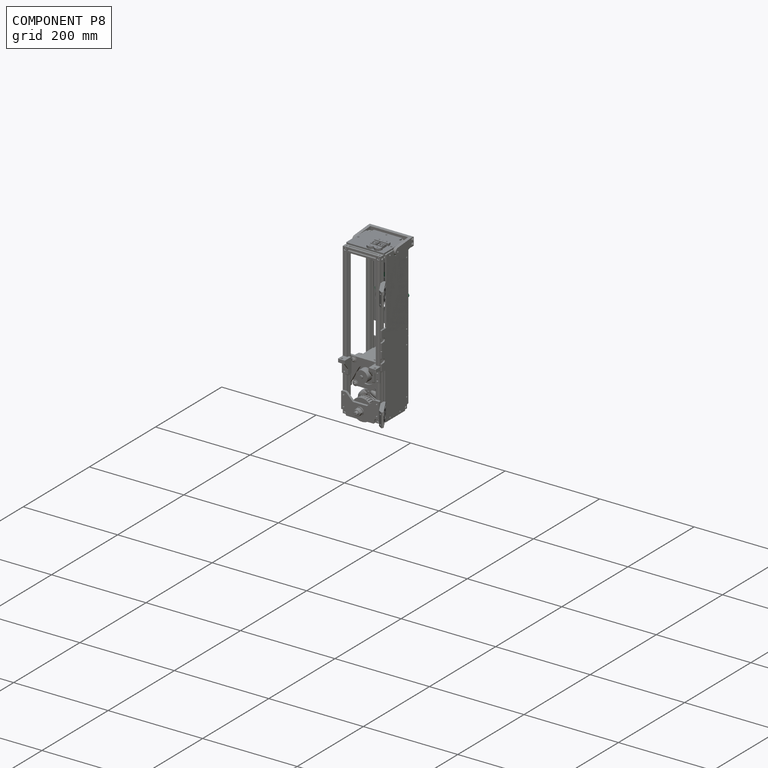
[diagram: component P8 — assembled]
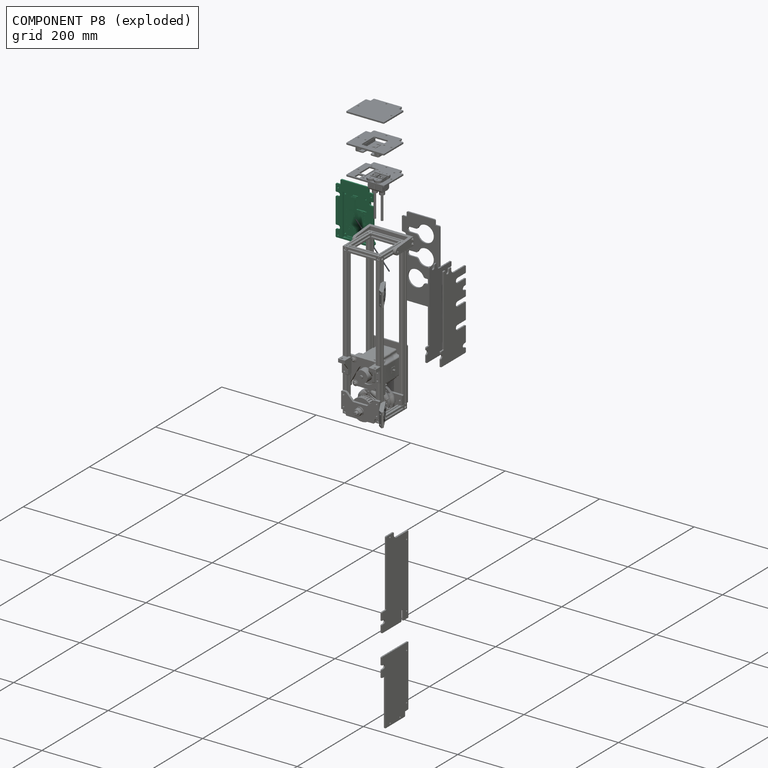
[diagram: component P8 — exploded]
COMPONENT P8 — recipe-attached ("EnsembleTFTCarter", modeled in this document).
Held by: resting contact with P0 (derived edge); resting contact with P1 (derived edge); resting contact with P3 (derived edge); resting contact with P4 (derived edge); resting contact with P5 (derived edge); resting contact with P6 (derived edge); resting contact with P7 (derived edge).
Construction recipe (the document's own serialized feature program — sketch geometry with constraints, then the solid features built on it; lengths are millimeters unless a unit is written):

FEATURE [Sketcher::SketchObject] Sketch183
  ArcFitTolerance = 0
  AttachmentSupport = -> [XZ_Plane106]
  ExternalBSplineMaxDegree = 0
  ExternalBSplineTolerance = 0
  FullyConstrained = true
  InternalTolerance = 1e-06
  InvalidShape = false
  MakeInternals = false
  MapMode = 5
  Placement = pos=(0,0,0) rot=(0,0.707107,0.707107;3.14159rad)
  Support = -> [XZ_Plane106]
  TreeRank = 115
  ValidateShape = true
  sketch-geometry (8):
    g0: LineSegment StartX=-40 StartY=310 StartZ=0 EndX=-30 EndY=310 EndZ=0
    g1: LineSegment StartX=-30 StartY=310 StartZ=0 EndX=-30 EndY=320 EndZ=0
    g2: LineSegment StartX=-30 StartY=320 StartZ=0 EndX=30 EndY=320 EndZ=0
    g3: LineSegment StartX=40 StartY=310 StartZ=0 EndX=40 EndY=207 EndZ=0
    g4: LineSegment StartX=40 StartY=207 StartZ=0 EndX=-40 EndY=207 EndZ=0
    g5: LineSegment StartX=-40 StartY=207 StartZ=0 EndX=-40 EndY=310 EndZ=0
    g6: LineSegment StartX=30 StartY=320 StartZ=0 EndX=30 EndY=310 EndZ=0
    g7: LineSegment StartX=30 StartY=310 StartZ=0 EndX=40 EndY=310 EndZ=0
  constraints (22):
    c: Horizontal(g0)
    c: Coincident(g0,g1)
    c: Vertical(g1)
    c: Coincident(g1,g2)
    c: Vertical(g3)
    c: Coincident(g3,g4)
    c: Horizontal(g4)
    c: Coincident(g4,g5)
    c: Coincident(g5,g0)
    c: Vertical(g5)
    c: Equal(g0,g1)
    c: DistanceY(g1,g1) = 10
    c: Symmetric(g1,g2,g-2)
    c: DistanceX(g2,g2) = 60
    c: DistanceY(g2) = 320
    c: Symmetric(g3,g0,g-2)
    c: DistanceY(g3,g2) = 113
    c: Coincident(g6,g2)
    c: Vertical(g6)
    c: Coincident(g7,g6)
    c: Coincident(g7,g3)
    c: Horizontal(g7)
FEATURE [PartDesign::Pad] Pad098
  AddSubType = 0
  AlongSketchNormal = false
  AutoTaperInnerAngle = false
  CheckUpToFaceLimits = true
  ClaimChildren = false
  Direction = (0,1,2e-16)
  Fit = 0
  FitJoin = 0
  InnerFit = 0
  InnerFitJoin = 0
  InvalidShape = false
  Length = 3
  Length2 = 100
  Linearize = true
  NewSolid = false
  Profile = -> Sketch183
  Refine = true
  Suppress = false
  TaperInnerAngle = 0
  TaperInnerAngleRev = 0
  TreeRank = 116
  Type = 0
  ValidateShape = true
  _ProfileBasedVersion = 1
FEATURE [Sketcher::SketchObject] Sketch184
  ArcFitTolerance = 0
  AttachmentSupport = -> [XZ_Plane106]
  ExternalBSplineMaxDegree = 0
  ExternalBSplineTolerance = 0
  ExternalGeometry = -> [Pad098]
  FullyConstrained = true
  InternalTolerance = 1e-06
  InvalidShape = false
  MakeInternals = false
  MapMode = 5
  Placement = pos=(0,0,0) rot=(0,0.707107,0.707107;3.14159rad)
  Support = -> [XZ_Plane106]
  TreeRank = 117
  ValidateShape = true
  sketch-geometry (16):
    g0: ArcOfCircle CenterX=-40 CenterY=290 CenterZ=0 NormalX=0 NormalY=0 NormalZ=1 AngleXU=0 Radius=4 StartAngle=1.5708 EndAngle=4.71239
    g1: ArcOfCircle CenterX=-35 CenterY=290 CenterZ=0 NormalX=0 NormalY=0 NormalZ=1 AngleXU=0 Radius=4 StartAngle=4.71239 EndAngle=7.85398
    g2: LineSegment StartX=-40 StartY=286 StartZ=0 EndX=-35 EndY=286 EndZ=0
    g3: LineSegment StartX=-35 StartY=294 StartZ=0 EndX=-40 EndY=294 EndZ=0
    g4: ArcOfCircle CenterX=-40 CenterY=227 CenterZ=0 NormalX=0 NormalY=0 NormalZ=1 AngleXU=0 Radius=4 StartAngle=1.5708 EndAngle=4.71239
    g5: ArcOfCircle CenterX=-35 CenterY=227 CenterZ=0 NormalX=0 NormalY=0 NormalZ=1 AngleXU=0 Radius=4 StartAngle=4.71239 EndAngle=7.85398
    g6: LineSegment StartX=-40 StartY=223 StartZ=0 EndX=-35 EndY=223 EndZ=0
    g7: LineSegment StartX=-35 StartY=231 StartZ=0 EndX=-40 EndY=231 EndZ=0
    g8: ArcOfCircle CenterX=40 CenterY=227 CenterZ=0 NormalX=0 NormalY=0 NormalZ=1 AngleXU=0 Radius=4 StartAngle=4.71239 EndAngle=7.85398
    g9: ArcOfCircle CenterX=35 CenterY=227 CenterZ=0 NormalX=0 NormalY=0 NormalZ=1 AngleXU=0 Radius=4 StartAngle=1.5708 EndAngle=4.71239
    g10: LineSegment StartX=40 StartY=231 StartZ=0 EndX=35 EndY=231 EndZ=0
    g11: LineSegment StartX=35 StartY=223 StartZ=0 EndX=40 EndY=223 EndZ=0
    g12: ArcOfCircle CenterX=40 CenterY=290 CenterZ=0 NormalX=0 NormalY=0 NormalZ=1 AngleXU=0 Radius=4 StartAngle=4.71239 EndAngle=7.85398
    g13: ArcOfCircle CenterX=35 CenterY=290 CenterZ=0 NormalX=0 NormalY=0 NormalZ=1 AngleXU=0 Radius=4 StartAngle=1.5708 EndAngle=4.71239
    g14: LineSegment StartX=40 StartY=294 StartZ=0 EndX=35 EndY=294 EndZ=0
    g15: LineSegment StartX=35 StartY=286 StartZ=0 EndX=40 EndY=286 EndZ=0
  constraints (40):
    c: Tangent(g0,g2) = -1.5708
    c: Tangent(g2,g1) = -1.5708
    c: Tangent(g1,g3) = -1.5708
    c: Tangent(g3,g0) = -1.5708
    c: Equal(g0,g1)
    c: Tangent(g4,g6) = -1.5708
    c: Tangent(g6,g5) = -1.5708
    c: Tangent(g5,g7) = -1.5708
    c: Tangent(g7,g4) = -1.5708
    c: Equal(g4,g5)
    c: Tangent(g8,g10) = -1.5708
    c: Tangent(g10,g9) = -1.5708
    c: Tangent(g9,g11) = -1.5708
    c: Tangent(g11,g8) = -1.5708
    c: Equal(g8,g9)
    c: Tangent(g12,g14) = -1.5708
    c: Tangent(g14,g13) = -1.5708
    c: Tangent(g13,g15) = -1.5708
    c: Tangent(g15,g12) = -1.5708
    c: Equal(g12,g13)
    c: Horizontal(g0,g1)
    c: Horizontal(g13,g12)
    c: Horizontal(g13,g1)
    c: Horizontal(g8,g9)
    c: Horizontal(g9,g5)
    c: Horizontal(g5,g4)
    c: Equal(g9,g5)
    c: Equal(g5,g1)
    c: Equal(g1,g13)
    c: Equal(g15,g2)
    c: Equal(g2,g7)
    c: Equal(g7,g10)
    c: PointOnObject(g12,g-4)
    c: PointOnObject(g0,g-3)
    c: PointOnObject(g4,g-3)
    c: PointOnObject(g8,g-4)
    c: DistanceX(g13,g12) = 5
    c: Radius(g13) = 4
    c: DistanceY(g12,g-4) = 20
    c: DistanceY(g-4,g8) = 20
FEATURE [PartDesign::Pocket] Pocket028
  AddSubType = 1
  AutoTaperInnerAngle = false
  BaseFeature = -> Pad098
  CheckUpToFaceLimits = true
  ClaimChildren = false
  Direction = (0,-1,-2e-16)
  Fit = 0
  FitJoin = 0
  InnerFit = 0
  InnerFitJoin = 0
  InvalidShape = false
  Length = 5
  Length2 = 100
  Linearize = true
  NewSolid = false
  Profile = -> Sketch184
  Refine = true
  Reversed = true
  Suppress = false
  TaperInnerAngle = 0
  TaperInnerAngleRev = 0
  TreeRank = 118
  Type = 1
  ValidateShape = true
  _ProfileBasedVersion = 1
  _Version = 1
FEATURE [Sketcher::SketchObject] Sketch185
  ArcFitTolerance = 1e-06
  AttachmentSupport = -> [Pocket028]
  ExternalBSplineMaxDegree = 0
  ExternalBSplineTolerance = 0
  ExternalGeometry = -> [Pocket028]
  FullyConstrained = true
  InternalTolerance = 1e-06
  InvalidShape = false
  MakeInternals = false
  MapMode = 5
  Placement = pos=(0,3,0) rot=(0,0.707107,0.707107;3.14159rad)
  Support = -> [Pocket028]
  TreeRank = 350
  ValidateShape = true
  sketch-geometry (13):
    g0: LineSegment StartX=25 StartY=221.4 StartZ=0 EndX=-25 EndY=221.4 EndZ=0
    g1: LineSegment StartX=-25 StartY=221.4 StartZ=0 EndX=-25 EndY=290.6 EndZ=0
    g2: LineSegment StartX=-25 StartY=290.6 StartZ=0 EndX=25 EndY=290.6 EndZ=0
    g3: LineSegment StartX=25 StartY=290.6 StartZ=0 EndX=25 EndY=221.4 EndZ=0
    g4: LineSegment [constr] StartX=-25 StartY=211 StartZ=0 EndX=-25 EndY=297 EndZ=0
    g5: LineSegment [constr] StartX=-25 StartY=297 StartZ=0 EndX=25 EndY=297 EndZ=0
    g6: LineSegment [constr] StartX=25 StartY=297 StartZ=0 EndX=25 EndY=211 EndZ=0
    g7: Circle CenterX=22 CenterY=217.92 CenterZ=0 NormalX=0 NormalY=0 NormalZ=1 AngleXU=0 Radius=1.6
    g8: Circle CenterX=-22 CenterY=217.92 CenterZ=0 NormalX=0 NormalY=0 NormalZ=1 AngleXU=0 Radius=1.6
    g9: LineSegment [constr] StartX=0 StartY=290.6 StartZ=0 EndX=0 EndY=221.4 EndZ=0
    g10: LineSegment [constr] StartX=-25 StartY=211 StartZ=0 EndX=25 EndY=211 EndZ=0
    g11: Circle CenterX=-22 CenterY=294 CenterZ=0 NormalX=0 NormalY=0 NormalZ=1 AngleXU=0 Radius=1.6
    g12: Circle CenterX=22 CenterY=294 CenterZ=0 NormalX=0 NormalY=0 NormalZ=1 AngleXU=0 Radius=1.6
  constraints (36):
    c: Coincident(g0,g1)
    c: Coincident(g1,g2)
    c: Coincident(g2,g3)
    c: Coincident(g3,g0)
    c: Horizontal(g0)
    c: Horizontal(g2)
    c: Vertical(g1)
    c: Vertical(g3)
    c: Coincident(g4,g5)
    c: Coincident(g5,g6)
    c: Horizontal(g5)
    c: Vertical(g4)
    c: Vertical(g6)
    c: DistanceX(g4,g6) = 50
    c: DistanceY(g3,g3) = 69.2
    c: DistanceX(g0,g0) = 50
    c: Equal(g8,g7)
    c: Diameter(g8) = 3.2
    c: PointOnObject(g9,g0)
    c: Symmetric(g1,g2,g9)
    c: Horizontal(g10)
    c: DistanceY(g10,g7) = 6.92
    c: Symmetric(g7,g8,g9)
    c: DistanceX(g7,g10) = 3
    c: DistanceY(g10,g0) = 10.4
    c: Coincident(g4,g10)
    c: Coincident(g6,g10)
    c: Equal(g8,g11)
    c: Equal(g11,g12)
    c: Symmetric(g11,g12,g9)
    c: Vertical(g12,g7)
    c: Symmetric(g6,g4,g9)
    c: DistanceY(g6,g5) = 86
    c: DistanceY(g12,g5) = 3
    c: PointOnObject(g9,g-2)
    c: DistanceY(g-3,g6) = 4
FEATURE [PartDesign::Pocket] Pocket029
  AddSubType = 1
  AutoTaperInnerAngle = false
  CheckUpToFaceLimits = true
  ClaimChildren = false
  Direction = (0,-1,2e-16)
  Fit = 0
  FitJoin = 0
  InnerFit = 0
  InnerFitJoin = 0
  InvalidShape = false
  Length = 5
  Length2 = 100
  Linearize = true
  NewSolid = false
  Profile = -> Sketch185
  Refine = true
  Suppress = false
  TaperInnerAngle = 0
  TaperInnerAngleRev = 0
  TreeRank = 351
  Type = 1
  ValidateShape = true
  _ProfileBasedVersion = 1
  _Version = 1
FEATURE [Sketcher::SketchObject] Sketch209
  ArcFitTolerance = 1e-06
  AttachmentSupport = -> [Pocket029]
  ExternalBSplineMaxDegree = 5
  ExternalBSplineTolerance = 0.0001
  ExternalGeometry = -> [Pocket029]
  FixShape = 1
  FullyConstrained = true
  InternalTolerance = 1e-06
  InvalidShape = false
  MakeInternals = false
  MapMode = 5
  Placement = pos=(0,3,0) rot=(0,0.707107,0.707107;3.14159rad)
  Support = -> [Pocket029]
  TreeRank = 595
  ValidateShape = false
  sketch-geometry (4):
    g0: LineSegment StartX=-25.1 StartY=297.6 StartZ=0 EndX=25.1 EndY=297.6 EndZ=0
    g1: LineSegment StartX=25.1 StartY=297.6 StartZ=0 EndX=25.1 EndY=210.4 EndZ=0
    g2: LineSegment StartX=25.1 StartY=210.4 StartZ=0 EndX=-25.1 EndY=210.4 EndZ=0
    g3: LineSegment StartX=-25.1 StartY=210.4 StartZ=0 EndX=-25.1 EndY=297.6 EndZ=0
  constraints (12):
    c: Coincident(g0,g1)
    c: Coincident(g1,g2)
    c: Coincident(g2,g3)
    c: Coincident(g3,g0)
    c: Horizontal(g0)
    c: Horizontal(g2)
    c: Vertical(g1)
    c: Vertical(g3)
    c: DistanceX(g-4,g0) = 0.1
    c: DistanceX(g0,g-3) = 0.1
    c: DistanceY(g-4,g0) = 7
    c: DistanceY(g2,g-3) = 11
FEATURE [PartDesign::Pocket] Pocket043
  AddSubType = 1
  AlongSketchNormal = false
  AutoTaperInnerAngle = true
  BaseFeature = -> Pocket029
  CheckUpToFaceLimits = true
  ClaimChildren = false
  Direction = (0,-1,2e-16)
  Fit = 0
  FitJoin = 0
  FixShape = 1
  InnerFit = 0
  InnerFitJoin = 0
  InvalidShape = false
  Length = 5
  Length2 = 10
  Linearize = true
  NewSolid = false
  Profile = -> Sketch209
  ReferenceAxis = -> Sketch209 [N_Axis]
  Refine = true
  Suppress = false
  TaperInnerAngle = 0
  TaperInnerAngleRev = 0
  TreeRank = 596
  Type = 0
  ValidateShape = false
  _ProfileBasedVersion = 1
  _Version = 1
FEATURE [PartDesign::SubShapeBinder] Binder001  label="Binder001(Pocket029)"
  BindCopyOnChange = 0
  BindMode = 0
  ClaimChildren = false
  Context = -> <external ../table_2024.FCStd>#Group [Link.Link.Group002.Link044.Body093.Binder001.]
  EdgeTolerance = 1e-06
  FillStyle = 0
  FixShape = 1
  Fuse = false
  InvalidShape = false
  MakeFace = true
  MergeEdges = true
  OffsetFill = false
  OffsetIntersection = false
  OffsetJoinType = 0
  OffsetOpenResult = false
  Outline = false
  PartialLoad = false
  Relative = true
  SplitEdges = false
  Support = -> [Body086[Pocket029.Face5]]
  TightBound = false
  TreeRank = 607
  ValidateShape = false
  _Version = 8
FEATURE [Sketcher::SketchObject] Sketch210
  ArcFitTolerance = 1e-06
  AttachmentSupport = -> [Binder001]
  ExternalBSplineMaxDegree = 5
  ExternalBSplineTolerance = 0.0001
  ExternalGeometry = -> [Binder001]
  FixShape = 1
  FullyConstrained = true
  InternalTolerance = 1e-06
  InvalidShape = false
  MakeInternals = false
  MapMode = 5
  Placement = pos=(0,78,0) rot=(0,0.707107,0.707107;3.14159rad)
  Support = -> [Binder001]
  TreeRank = 608
  ValidateShape = false
  sketch-geometry (12):
    g0: Circle CenterX=-22 CenterY=217.92 CenterZ=0 NormalX=0 NormalY=0 NormalZ=1 AngleXU=0 Radius=1.7
    g1: Circle CenterX=22 CenterY=217.92 CenterZ=0 NormalX=0 NormalY=0 NormalZ=1 AngleXU=0 Radius=1.7
    g2: Circle CenterX=22 CenterY=294 CenterZ=0 NormalX=0 NormalY=0 NormalZ=1 AngleXU=0 Radius=1.7
    g3: Circle CenterX=-22 CenterY=294 CenterZ=0 NormalX=0 NormalY=0 NormalZ=1 AngleXU=0 Radius=1.7
    g4: LineSegment StartX=-25.4 StartY=291 StartZ=0 EndX=25.4 EndY=291 EndZ=0
    g5: LineSegment StartX=25.4 StartY=291 StartZ=0 EndX=25.4 EndY=221 EndZ=0
    g6: LineSegment StartX=25.4 StartY=221 StartZ=0 EndX=-25.4 EndY=221 EndZ=0
    g7: LineSegment StartX=-25.4 StartY=221 StartZ=0 EndX=-25.4 EndY=291 EndZ=0
    g8: LineSegment StartX=-29.4 StartY=307 StartZ=0 EndX=29.4 EndY=307 EndZ=0
    g9: LineSegment StartX=29.4 StartY=307 StartZ=0 EndX=29.4 EndY=208 EndZ=0
    g10: LineSegment StartX=29.4 StartY=208 StartZ=0 EndX=-29.4 EndY=208 EndZ=0
    g11: LineSegment StartX=-29.4 StartY=208 StartZ=0 EndX=-29.4 EndY=307 EndZ=0
  constraints (32):
    c: Coincident(g0,g-5)
    c: Coincident(g1,g-6)
    c: Coincident(g2,g-4)
    c: Coincident(g3,g-3)
    c: Equal(g3,g2)
    c: Equal(g3,g0)
    c: Equal(g3,g1)
    c: Diameter(g3) = 3.4
    c: Coincident(g4,g5)
    c: Coincident(g5,g6)
    c: Coincident(g6,g7)
    c: Coincident(g7,g4)
    c: Horizontal(g4)
    c: Horizontal(g6)
    c: Vertical(g5)
    c: Vertical(g7)
    c: DistanceY(g-7,g4) = 0.4
    c: DistanceY(g6,g-7) = 0.4
    c: DistanceX(g6,g-7) = 0.4
    c: DistanceX(g-8,g5) = 0.4
    c: Coincident(g8,g9)
    c: Coincident(g9,g10)
    c: Coincident(g10,g11)
    c: Coincident(g11,g8)
    c: Horizontal(g8)
    c: Horizontal(g10)
    c: Vertical(g9)
    c: Vertical(g11)
    c: DistanceX(g5,g9) = 4
    c: DistanceX(g10,g6) = 4
    c: DistanceY(g8,g-10) = 3
    c: DistanceY(g-9,g9) = 1
FEATURE [PartDesign::Pad] Pad109
  AddSubType = 0
  AlongSketchNormal = false
  AutoTaperInnerAngle = true
  CheckUpToFaceLimits = true
  ClaimChildren = false
  Direction = (0,1,-2e-16)
  Fit = 0
  FitJoin = 0
  FixShape = 1
  InnerFit = 0
  InnerFitJoin = 0
  InvalidShape = false
  Length = 6
  Length2 = 10
  Linearize = true
  NewSolid = false
  Profile = -> Sketch210
  ReferenceAxis = -> Sketch210 [N_Axis]
  Refine = true
  Suppress = false
  TaperInnerAngle = 0
  TaperInnerAngleRev = 0
  TreeRank = 609
  Type = 0
  ValidateShape = false
  _ProfileBasedVersion = 1
FEATURE [Sketcher::SketchObject] Sketch211
  ArcFitTolerance = 1e-06
  AttachmentSupport = -> [Pad109]
  ExternalBSplineMaxDegree = 5
  ExternalBSplineTolerance = 0.0001
  ExternalGeometry = -> [Pad109]
  FixShape = 1
  FullyConstrained = true
  InternalTolerance = 1e-06
  InvalidShape = false
  MakeInternals = false
  MapMode = 5
  Placement = pos=(0,78,-2.51e-14) rot=(1,0,0;1.5708rad)
  Support = -> [Pad109]
  TreeRank = 610
  ValidateShape = false
  sketch-geometry (10):
    g0: ArcOfCircle CenterX=-29.4 CenterY=303 CenterZ=0 NormalX=0 NormalY=0 NormalZ=1 AngleXU=0 Radius=4 StartAngle=4.71239 EndAngle=7.85398
    g1: ArcOfCircle CenterX=-35 CenterY=303 CenterZ=0 NormalX=0 NormalY=0 NormalZ=1 AngleXU=0 Radius=4 StartAngle=1.5708 EndAngle=4.71239
    g2: LineSegment StartX=-29.4 StartY=307 StartZ=0 EndX=-35 EndY=307 EndZ=0
    g3: LineSegment StartX=-35 StartY=299 StartZ=0 EndX=-29.4 EndY=299 EndZ=0
    g4: ArcOfCircle CenterX=-29.4 CenterY=212 CenterZ=0 NormalX=0 NormalY=0 NormalZ=1 AngleXU=0 Radius=4 StartAngle=4.71239 EndAngle=7.85398
    g5: ArcOfCircle CenterX=-35 CenterY=212 CenterZ=0 NormalX=0 NormalY=0 NormalZ=1 AngleXU=0 Radius=4 StartAngle=1.5708 EndAngle=4.71239
    g6: LineSegment StartX=-29.4 StartY=216 StartZ=0 EndX=-35 EndY=216 EndZ=0
    g7: LineSegment StartX=-35 StartY=208 StartZ=0 EndX=-29.4 EndY=208 EndZ=0
    g8: Circle CenterX=-35 CenterY=303 CenterZ=0 NormalX=0 NormalY=0 NormalZ=1 AngleXU=0 Radius=2.1
    g9: Circle CenterX=-35 CenterY=212 CenterZ=0 NormalX=0 NormalY=0 NormalZ=1 AngleXU=0 Radius=2.1
  constraints (22):
    c: Tangent(g0,g2) = -1.5708
    c: Tangent(g2,g1) = -1.5708
    c: Tangent(g1,g3) = -1.5708
    c: Tangent(g3,g0) = -1.5708
    c: Equal(g0,g1)
    c: Horizontal(g2)
    c: Coincident(g0,g-4)
    c: Tangent(g4,g6) = -1.5708
    c: Tangent(g6,g5) = -1.5708
    c: Tangent(g5,g7) = -1.5708
    c: Tangent(g7,g4) = -1.5708
    c: Equal(g4,g5)
    c: Horizontal(g6)
    c: Coincident(g4,g-4)
    c: Equal(g5,g1)
    c: Vertical(g5,g1)
    c: Diameter(g1) = 8
    c: Coincident(g8,g1)
    c: Coincident(g9,g5)
    c: Equal(g9,g8)
    c: Diameter(g9) = 4.2
    c: DistanceX(g5,g-1) = 35
FEATURE [PartDesign::Pad] Pad110
  AddSubType = 0
  AlongSketchNormal = false
  AutoTaperInnerAngle = true
  BaseFeature = -> Pad109
  CheckUpToFaceLimits = true
  ClaimChildren = false
  Direction = (0,-1,2e-16)
  Fit = 0
  FitJoin = 0
  FixShape = 1
  InnerFit = 0
  InnerFitJoin = 0
  InvalidShape = false
  Length = 6
  Length2 = 10
  Linearize = true
  NewSolid = false
  Profile = -> Sketch211
  ReferenceAxis = -> Sketch211 [N_Axis]
  Refine = true
  Reversed = true
  Suppress = false
  TaperInnerAngle = 0
  TaperInnerAngleRev = 0
  TreeRank = 611
  Type = 0
  ValidateShape = false
  _ProfileBasedVersion = 1
FEATURE [PartDesign::Mirrored] Mirrored
  AddSubType = 0
  BaseFeature = -> Pad110
  CopyShape = false
  FixShape = 1
  InvalidShape = false
  MirrorPlane = -> YZ_Plane114
  NewSolid = false
  OriginalSubs = -> [Pad110]
  Originals = -> [Pad110]
  ParallelTransform = true
  Refine = true
  SubTransform = true
  Suppress = false
  TreeRank = 612
  ValidateShape = false
  _Version = 3
FEATURE [Sketcher::SketchObject] Sketch212
  ArcFitTolerance = 1e-06
  AttachmentSupport = -> [Mirrored]
  ExternalBSplineMaxDegree = 5
  ExternalBSplineTolerance = 0.0001
  ExternalGeometry = -> [Mirrored]
  FixShape = 1
  FullyConstrained = true
  InternalTolerance = 1e-06
  InvalidShape = false
  MakeInternals = false
  MapMode = 5
  Placement = pos=(0,78,-2.29e-14) rot=(1,0,0;1.5708rad)
  Support = -> [Mirrored]
  TreeRank = 613
  ValidateShape = false
  sketch-geometry (4):
    g0: LineSegment StartX=-25.4 StartY=299 StartZ=0 EndX=25.4 EndY=299 EndZ=0
    g1: LineSegment StartX=25.4 StartY=299 StartZ=0 EndX=25.4 EndY=210 EndZ=0
    g2: LineSegment StartX=25.4 StartY=210 StartZ=0 EndX=-25.4 EndY=210 EndZ=0
    g3: LineSegment StartX=-25.4 StartY=210 StartZ=0 EndX=-25.4 EndY=299 EndZ=0
  constraints (12):
    c: Coincident(g0,g1)
    c: Coincident(g1,g2)
    c: Coincident(g2,g3)
    c: Coincident(g3,g0)
    c: Horizontal(g0)
    c: Horizontal(g2)
    c: Vertical(g1)
    c: Vertical(g3)
    c: PointOnObject(g-4,g1)
    c: PointOnObject(g-3,g3)
    c: DistanceY(g-3,g0) = 8
    c: DistanceY(g2,g-3) = 11
FEATURE [PartDesign::Pocket] Pocket044
  AddSubType = 1
  AlongSketchNormal = false
  AutoTaperInnerAngle = true
  BaseFeature = -> Mirrored
  CheckUpToFaceLimits = true
  ClaimChildren = false
  Direction = (0,1,-2e-16)
  Fit = 0
  FitJoin = 0
  FixShape = 1
  InnerFit = 0
  InnerFitJoin = 0
  InvalidShape = false
  Length = 2
  Length2 = 10
  Linearize = true
  NewSolid = false
  Profile = -> Sketch212
  ReferenceAxis = -> Sketch212 [N_Axis]
  Refine = true
  Suppress = false
  TaperInnerAngle = 0
  TaperInnerAngleRev = 0
  TreeRank = 614
  Type = 0
  ValidateShape = false
  _ProfileBasedVersion = 1
  _Version = 1
FEATURE [Sketcher::SketchObject] Sketch213
  ArcFitTolerance = 1e-06
  AttachmentSupport = -> [Pocket044]
  ExternalBSplineMaxDegree = 5
  ExternalBSplineTolerance = 0.0001
  ExternalGeometry = -> [Binder001]
  FixShape = 1
  FullyConstrained = true
  InternalTolerance = 1e-06
  InvalidShape = false
  MakeInternals = false
  MapMode = 5
  Placement = pos=(0,80,-2.55e-14) rot=(1,0,0;1.5708rad)
  Support = -> [Pocket044]
  TreeRank = 615
  ValidateShape = false
  sketch-geometry (4):
    g0: ArcOfCircle CenterX=-16.5 CenterY=213.4 CenterZ=0 NormalX=0 NormalY=0 NormalZ=1 AngleXU=0 Radius=2.5 StartAngle=1.5708 EndAngle=4.71239
    g1: ArcOfCircle CenterX=16.5 CenterY=213.4 CenterZ=0 NormalX=0 NormalY=0 NormalZ=1 AngleXU=0 Radius=2.5 StartAngle=4.71239 EndAngle=7.85398
    g2: LineSegment StartX=-16.5 StartY=210.9 StartZ=0 EndX=16.5 EndY=210.9 EndZ=0
    g3: LineSegment StartX=16.5 StartY=215.9 StartZ=0 EndX=-16.5 EndY=215.9 EndZ=0
  constraints (10):
    c: Tangent(g0,g2) = -1.5708
    c: Tangent(g2,g1) = -1.5708
    c: Tangent(g1,g3) = -1.5708
    c: Tangent(g3,g0) = -1.5708
    c: Equal(g0,g1)
    c: Horizontal(g2)
    c: DistanceX(g1,g-3) = 8.5
    c: DistanceX(g-4,g0) = 8.5
    c: DistanceY(g1,g-3) = 8
    c: Diameter(g1) = 5
FEATURE [PartDesign::Pocket] Pocket045
  AddSubType = 1
  AlongSketchNormal = false
  AutoTaperInnerAngle = true
  BaseFeature = -> Pocket044
  CheckUpToFaceLimits = true
  ClaimChildren = false
  Direction = (0,1,-2e-16)
  Fit = 0
  FitJoin = 0
  FixShape = 1
  InnerFit = 0
  InnerFitJoin = 0
  InvalidShape = false
  Length = 2
  Length2 = 10
  Linearize = true
  NewSolid = false
  Profile = -> Sketch213
  ReferenceAxis = -> Sketch213 [N_Axis]
  Refine = true
  Suppress = false
  TaperInnerAngle = 0
  TaperInnerAngleRev = 0
  TreeRank = 616
  Type = 0
  ValidateShape = false
  _ProfileBasedVersion = 1
  _Version = 1
FEATURE [PartDesign::Chamfer] Chamfer073
  AddSubType = 0
  Angle = 45
  Base = -> Pocket043 [Edge62,Edge66,Edge68,Edge74,Edge79,Edge76,Edge77,Edge75,Edge73,Edge67,Edge7,Edge65,Edge1,Edge8]
  BaseFeature = -> Pocket043
  ChamferType = 0
  FixShape = 1
  FlipDirection = false
  InvalidShape = false
  NewSolid = false
  Refine = true
  Size = 1
  Size2 = 1
  SupportTransform = false
  Suppress = false
  TreeRank = 617
  UseAllEdges = false
  ValidateShape = false
FEATURE [PartDesign::Fillet] Fillet
  AddSubType = 0
  Base = -> Pocket045 [Edge54,Edge56,Edge6,Edge1]
  BaseFeature = -> Pocket045
  FixShape = 1
  InvalidShape = false
  NewSolid = false
  Radius = 4
  Refine = true
  SupportTransform = false
  Suppress = false
  TreeRank = 618
  UseAllEdges = false
  ValidateShape = false
FEATURE [PartDesign::Chamfer] Chamfer074
  AddSubType = 0
  Angle = 45
  Base = -> Fillet [Face5,Face2]
  BaseFeature = -> Fillet
  ChamferType = 0
  FixShape = 1
  FlipDirection = false
  InvalidShape = false
  NewSolid = false
  Refine = true
  Size = 0.4
  Size2 = 1
  SupportTransform = false
  Suppress = false
  TreeRank = 619
  UseAllEdges = false
  ValidateShape = false
FEATURE [PartDesign::Body] Body093  label="SpacerTFT"
  AutoGroupSolids = false
  ClaimAllChildren = false
  ExportMode = 0
  FixShape = 1
  Group = -> [Binder001,Sketch210,Pad109,Sketch211,Pad110,Mirrored,Sketch212,Pocket044,Sketch213,Pocket045,Fillet,Chamfer074]
  InvalidShape = false
  Origin = -> Origin186
  SingleSolid = true
  Tip = -> Chamfer074
  TreeRank = 606
  ValidateShape = false
  _ExportChildren = -> [Binder001,Pad109,Pad110,Mirrored,Pocket044,Pocket045,Fillet,Chamfer074]
  _GroupVersion = 1
FEATURE [Sketcher::SketchObject] Sketch214
  ArcFitTolerance = 1e-06
  AttachmentSupport = -> [Chamfer073]
  ExternalBSplineMaxDegree = 5
  ExternalBSplineTolerance = 0.0001
  ExternalGeometry = -> [Chamfer073]
  FixShape = 1
  FullyConstrained = true
  InternalTolerance = 1e-06
  InvalidShape = false
  MakeInternals = false
  MapMode = 5
  Placement = pos=(0,3,0) rot=(0,0.707107,0.707107;3.14159rad)
  Support = -> [Chamfer073]
  TreeRank = 620
  ValidateShape = false
  sketch-geometry (8):
    g0: Circle CenterX=35 CenterY=212 CenterZ=0 NormalX=0 NormalY=0 NormalZ=1 AngleXU=0 Radius=1.6
    g1: Circle CenterX=-35 CenterY=212 CenterZ=0 NormalX=0 NormalY=0 NormalZ=1 AngleXU=0 Radius=1.6
    g2: Circle CenterX=-35 CenterY=303 CenterZ=0 NormalX=0 NormalY=0 NormalZ=1 AngleXU=0 Radius=1.6
    g3: Circle CenterX=35 CenterY=303 CenterZ=0 NormalX=0 NormalY=0 NormalZ=1 AngleXU=0 Radius=1.6
    g4: LineSegment [constr] StartX=-35 StartY=303 StartZ=0 EndX=35 EndY=303 EndZ=0
    g5: LineSegment [constr] StartX=35 StartY=303 StartZ=0 EndX=35 EndY=212 EndZ=0
    g6: LineSegment [constr] StartX=35 StartY=212 StartZ=0 EndX=-35 EndY=212 EndZ=0
    g7: LineSegment [constr] StartX=-35 StartY=212 StartZ=0 EndX=-35 EndY=303 EndZ=0
  constraints (19):
    c: Coincident(g4,g5)
    c: Coincident(g5,g6)
    c: Coincident(g6,g7)
    c: Coincident(g7,g4)
    c: Horizontal(g6)
    c: Vertical(g5)
    c: Vertical(g7)
    c: Coincident(g4,g2)
    c: Coincident(g5,g0)
    c: Coincident(g3,g4)
    c: Coincident(g1,g6)
    c: Equal(g1,g0)
    c: Equal(g1,g3)
    c: Equal(g1,g2)
    c: Diameter(g1) = 3.2
    c: DistanceX(g-1,g3) = 35
    c: Symmetric(g3,g2,g-2)
    c: DistanceY(g5,g5) = 91
    c: DistanceY(g-3,g0) = 5
FEATURE [PartDesign::Pocket] Pocket046
  AddSubType = 1
  AlongSketchNormal = false
  AutoTaperInnerAngle = true
  BaseFeature = -> Chamfer073
  CheckUpToFaceLimits = true
  ClaimChildren = false
  Direction = (0,-1,2e-16)
  Fit = 0
  FitJoin = 0
  FixShape = 1
  InnerFit = 0
  InnerFitJoin = 0
  InvalidShape = false
  Length = 5
  Length2 = 10
  Linearize = true
  NewSolid = false
  Profile = -> Sketch214
  ReferenceAxis = -> Sketch214 [N_Axis]
  Refine = true
  Suppress = false
  TaperInnerAngle = 0
  TaperInnerAngleRev = 0
  TreeRank = 621
  Type = 1
  ValidateShape = false
  _ProfileBasedVersion = 1
  _Version = 1
FEATURE [PartDesign::Body] Body086  label="CarterSide240*320"
  AutoGroupSolids = false
  ClaimAllChildren = false
  ExportMode = 0
  Group = -> [Sketch183,Pad098,Sketch184,Pocket028,Sketch185,Pocket029,Sketch209,Pocket043,Chamfer073,Sketch214,Pocket046]
  InvalidShape = false
  Origin = -> Origin174
  Placement = pos=(0,75,0) rot=(0,0,1;0rad)
  SingleSolid = true
  Tip = -> Pocket046
  TreeRank = 382
  ValidateShape = true
  _ExportChildren = -> [Pad098,Pocket028,Pocket029,Pocket043,Chamfer073,Pocket046]
  _GroupVersion = 1
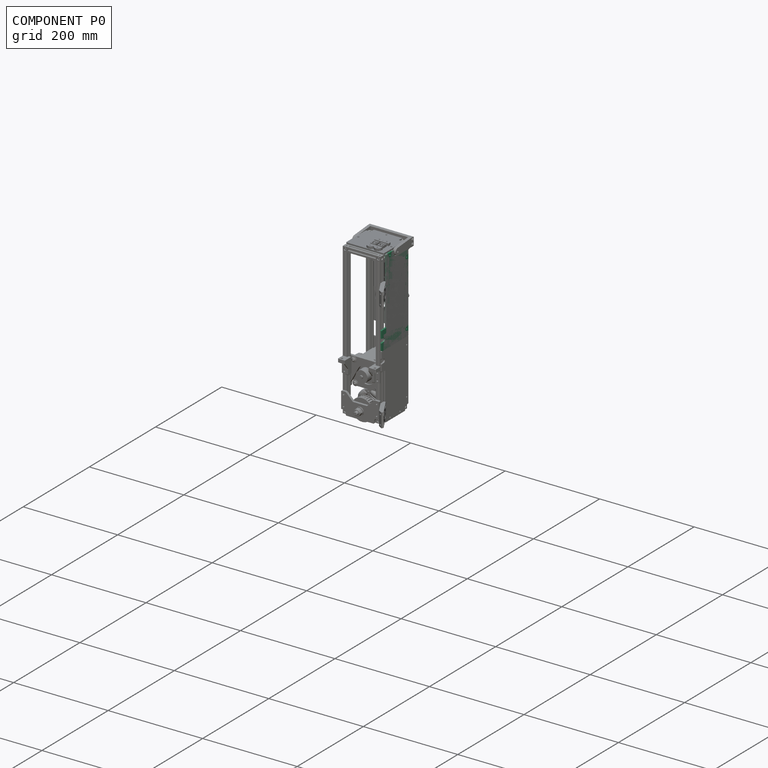
[diagram: component P0 — assembled]
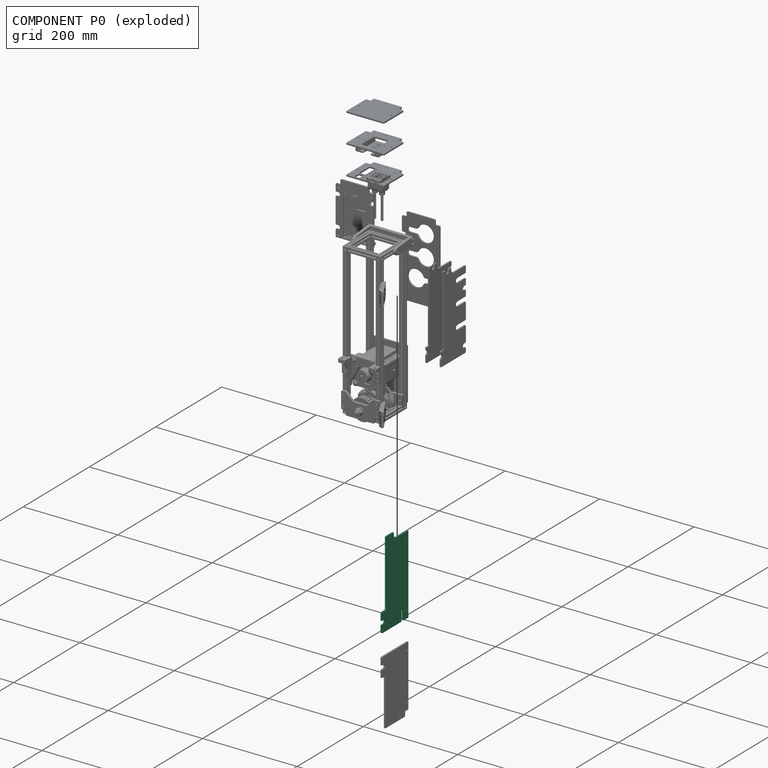
[diagram: component P0 — exploded]
COMPONENT P0 — recipe-attached ("CarterSup", modeled in this document).
Held by: resting contact with P1 (derived edge); resting contact with P2 (derived edge); resting contact with P3 (derived edge); resting contact with P4 (derived edge); resting contact with P5 (derived edge); resting contact with P6 (derived edge); resting contact with P7 (derived edge); resting contact with P8 (derived edge); resting contact with P9 (derived edge).
Construction recipe (the document's own serialized feature program — sketch geometry with constraints, then the solid features built on it; lengths are millimeters unless a unit is written):

FEATURE [PartDesign::Body] Body  label="CarterSup"
  AutoGroupSolids = false
  ClaimAllChildren = false
  ExportMode = 0
  Group = -> [Sketch,Export,Pad,Sketch158,Pocket014,Chamfer059,Chamfer]
  InvalidShape = false
  Origin = -> Origin157
  SingleSolid = true
  Tip = -> Chamfer
  TreeRank = 11
  ValidateShape = true
  _ExportChildren = -> [Pad,Pocket014,Chamfer059,Chamfer]
  _GroupVersion = 1
FEATURE [Sketcher::SketchObject] Sketch
  ArcFitTolerance = 0
  AttachmentOffset = pos=(0,0,40) rot=(0,0,1;0rad)
  AttachmentSupport = -> [YZ_Plane090]
  Exports = -> [Export]
  ExternalBSplineMaxDegree = 0
  ExternalBSplineTolerance = 0
  FullyConstrained = true
  InternalTolerance = 1e-06
  InvalidShape = false
  MakeInternals = false
  MapMode = 5
  Placement = pos=(40,-8.9e-15,8.9e-15) rot=(0.57735,0.57735,0.57735;2.0944rad)
  Support = -> [YZ_Plane090]
  TreeRank = 12
  ValidateShape = true
  expr: Constraints[16] = 3 + 5
  sketch-geometry (17):
    g0: LineSegment StartX=8 StartY=320 StartZ=0 EndX=31 EndY=320 EndZ=0
    g1: LineSegment StartX=8 StartY=320 StartZ=0 EndX=8 EndY=180 EndZ=0
    g2: LineSegment StartX=8 StartY=180 StartZ=0 EndX=-5 EndY=180 EndZ=0
    g3: LineSegment StartX=-5 StartY=180 StartZ=0 EndX=-5 EndY=164 EndZ=0
    g4: LineSegment StartX=-5 StartY=140 StartZ=0 EndX=75 EndY=140 EndZ=0
    g5: LineSegment StartX=75 StartY=140 StartZ=0 EndX=75 EndY=307 EndZ=0
    g6: LineSegment StartX=75 StartY=307 StartZ=0 EndX=39 EndY=307 EndZ=0
    g7: LineSegment StartX=31 StartY=320 StartZ=0 EndX=31 EndY=315 EndZ=0
    g8: ArcOfCircle CenterX=39 CenterY=315 CenterZ=0 NormalX=0 NormalY=0 NormalZ=1 AngleXU=0 Radius=8 StartAngle=3.14159 EndAngle=4.71239
    g9: ArcOfCircle CenterX=4.1873e-12 CenterY=160 CenterZ=0 NormalX=0 NormalY=0 NormalZ=1 AngleXU=0 Radius=4 StartAngle=4.71239 EndAngle=7.85398
    g10: LineSegment StartX=-5 StartY=156 StartZ=0 EndX=4.56684e-11 EndY=156 EndZ=0
    g11: LineSegment StartX=4.17683e-11 StartY=164 StartZ=0 EndX=-5 EndY=164 EndZ=0
    g12: Circle CenterX=19.5 CenterY=315 CenterZ=0 NormalX=0 NormalY=0 NormalZ=1 AngleXU=0 Radius=1.6
    g13: Circle CenterX=70 CenterY=292 CenterZ=0 NormalX=0 NormalY=0 NormalZ=1 AngleXU=0 Radius=1.6
    g14: Circle CenterX=70 CenterY=155 CenterZ=0 NormalX=0 NormalY=0 NormalZ=1 AngleXU=0 Radius=1.6
    g15: LineSegment [constr] StartX=19.5 StartY=315 StartZ=0 EndX=19.5 EndY=320 EndZ=0
    g16: LineSegment StartX=-5 StartY=156 StartZ=0 EndX=-5 EndY=140 EndZ=0
  constraints (48):
    c: Horizontal(g0)
    c: Coincident(g0,g1)
    c: Vertical(g1)
    c: Coincident(g1,g2)
    c: Horizontal(g2)
    c: Coincident(g2,g3)
    c: Vertical(g3)
    c: Coincident(g16,g4)
    c: Horizontal(g4)
    c: Coincident(g4,g5)
    c: Vertical(g5)
    c: Coincident(g5,g6)
    c: Horizontal(g6)
    c: Coincident(g0,g7)
    c: Vertical(g7)
    c: DistanceY(g0) = 320
    c: DistanceX(g0) = 8
    c: DistanceX(g8) = 39
    c: DistanceY(g7,g7) = 5
    c: Tangent(g8,g7) = -1.5708
    c: Tangent(g8,g6) = 1.5708
    c: DistanceX(g5) = 75
    c: Radius(g8) = 8
    c: DistanceY(g2) = 180
    c: DistanceX(g2) = -5
    c: DistanceY(g16,g3) = 40
    c: Tangent(g10,g9) = -1.5708
    c: Tangent(g9,g11) = -1.5708
    c: Horizontal(g11)
    c: PointOnObject(g9,g-2)
    c: Radius(g9) = 4
    c: Vertical(g14,g13)
    c: DistanceX(g13,g5) = 5
    c: DistanceY(g13,g5) = 15
    c: DistanceY(g4,g14) = 15
    c: Equal(g14,g13)
    c: Equal(g14,g12)
    c: Diameter(g14) = 3.2
    c: Coincident(g15,g12)
    c: Vertical(g15)
    c: Symmetric(g0,g0,g15)
    c: DistanceY(g12,g15) = 5
    c: Equal(g3,g16)
    c: Coincident(g10,g16)
    c: Vertical(g16)
    c: Horizontal(g10)
    c: DistanceX(g4,g9) = 5
    c: Coincident(g3,g11)
FEATURE [Sketcher::SketchExport] Export
  Base = -> Sketch
  BaseRefs = -> Sketch [vertex1,vertex2,edge1,vertex3,vertex4,edge2,vertex5,vertex6,edge3,vertex7,vertex8,edge4,vertex9,vertex10,edge5,vertex11,vertex12,edge6,vertex13,vertex14,edge7,vertex15,vertex16,edge8,edge9,vertex17,vertex18,vertex19]
  InvalidShape = false
  Placement = pos=(40,-8.9e-15,8.9e-15) rot=(0.57735,0.57735,0.57735;2.0944rad)
  Refs = ;g1v1.vertex1 | ;g1v2.vertex2 | ;g1.edge1 | ;g2v1.vertex3 | ;g2v2.vertex4 | ;g2.edge2 | ;g3v1.vertex5 | ;g3v2.vertex6 | ;g3.edge3 | ;g4v1.vertex7 | ;g4v2.vertex8 | ;g4.edge4 | ;g5v1.vertex9 | ;g5v2.vertex10 | ;g5.edge5 | ;g6v1.vertex11 | ;g6v2.vertex12 | ;g6.edge6 | ;g7v1.vertex13 | ;g7v2.vertex14 | ;g7.edge7 | ;g8v1.vertex15 | ;g8v2.vertex16 | ;g8.edge8 | ;g9.edge9 | ;g9v1.vertex17 | ;g9v2.vertex18 | ;g9v3.vertex19
  SyncPlacement = true
  TreeRank = 13
  ValidateShape = true
FEATURE [PartDesign::Pad] Pad
  AddSubType = 0
  AlongSketchNormal = false
  AutoTaperInnerAngle = false
  CheckUpToFaceLimits = true
  ClaimChildren = false
  Direction = (1,-2e-16,3e-16)
  Fit = 0
  FitJoin = 0
  InnerFit = 0
  InnerFitJoin = 0
  InvalidShape = false
  Length = 3
  Length2 = 100
  Linearize = true
  NewSolid = false
  Placement = pos=(0,0,0) rot=(0.57735,0.57735,0.57735;2.0944rad)
  Profile = -> Sketch
  Refine = true
  Suppress = false
  TaperInnerAngle = 0
  TaperInnerAngleRev = 0
  TreeRank = 14
  Type = 0
  ValidateShape = true
  _ProfileBasedVersion = 1
FEATURE [Sketcher::SketchObject] Sketch158
  ArcFitTolerance = 0
  AttachmentSupport = -> [Pad]
  ExternalBSplineMaxDegree = 0
  ExternalBSplineTolerance = 0
  ExternalGeometry = -> [Pad]
  FullyConstrained = true
  InternalTolerance = 1e-06
  InvalidShape = false
  MakeInternals = false
  MapMode = 5
  Placement = pos=(43,-1.03e-14,9.5e-15) rot=(0.57735,0.57735,0.57735;2.0944rad)
  Support = -> [Pad]
  TreeRank = 94
  ValidateShape = true
  sketch-geometry (4):
    g0: ArcOfCircle CenterX=56.5 CenterY=140 CenterZ=0 NormalX=0 NormalY=0 NormalZ=1 AngleXU=0 Radius=2.5 StartAngle=3.14159 EndAngle=6.28319
    g1: ArcOfCircle CenterX=56.5 CenterY=160 CenterZ=0 NormalX=0 NormalY=0 NormalZ=1 AngleXU=0 Radius=2.5 StartAngle=-3.944e-13 EndAngle=3.14159
    g2: LineSegment StartX=59 StartY=140 StartZ=0 EndX=59 EndY=160 EndZ=0
    g3: LineSegment StartX=54 StartY=160 StartZ=0 EndX=54 EndY=140 EndZ=0
  constraints (10):
    c: Tangent(g0,g2) = -1.5708
    c: Tangent(g2,g1) = -1.5708
    c: Tangent(g1,g3) = -1.5708
    c: Tangent(g3,g0) = -1.5708
    c: Equal(g0,g1)
    c: Vertical(g2)
    c: DistanceX(g1,g1) = 5
    c: DistanceY(g3,g3) = 20
    c: PointOnObject(g0,g-4)
    c: DistanceX(g0,g-4) = 16
FEATURE [PartDesign::Pocket] Pocket014
  AddSubType = 1
  AutoTaperInnerAngle = false
  BaseFeature = -> Pad
  CheckUpToFaceLimits = true
  ClaimChildren = false
  Direction = (-1,2e-16,-2e-16)
  Fit = 0
  FitJoin = 0
  InnerFit = 0
  InnerFitJoin = 0
  InvalidShape = false
  Length = 5
  Length2 = 100
  Linearize = true
  NewSolid = false
  Profile = -> Sketch158
  Refine = true
  Suppress = false
  TaperInnerAngle = 0
  TaperInnerAngleRev = 0
  TreeRank = 95
  Type = 1
  ValidateShape = true
  _ProfileBasedVersion = 1
  _Version = 1
FEATURE [PartDesign::Chamfer] Chamfer059
  AddSubType = 0
  Angle = 45
  Base = -> Pocket014 [Edge45,Edge55]
  BaseFeature = -> Pocket014
  ChamferType = 0
  FlipDirection = false
  InvalidShape = false
  NewSolid = false
  Refine = true
  Size = 1
  Size2 = 1
  SupportTransform = false
  Suppress = false
  TreeRank = 96
  UseAllEdges = false
  ValidateShape = true
FEATURE [PartDesign::Chamfer] Chamfer
  AddSubType = 0
  Angle = 45
  Base = -> Chamfer059 [Edge52,Edge48,Edge46,Edge50,Edge24,Edge28,Edge40,Edge44]
  BaseFeature = -> Chamfer059
  ChamferType = 0
  FixShape = 1
  FlipDirection = false
  InvalidShape = false
  NewSolid = false
  Refine = true
  Size = 1
  Size2 = 1
  SupportTransform = false
  Suppress = false
  TreeRank = 622
  UseAllEdges = false
  ValidateShape = false
